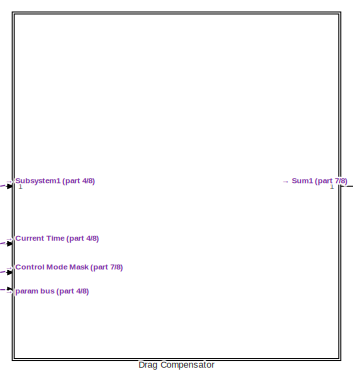
[diagram: root canvas - part 1/8, top center region]
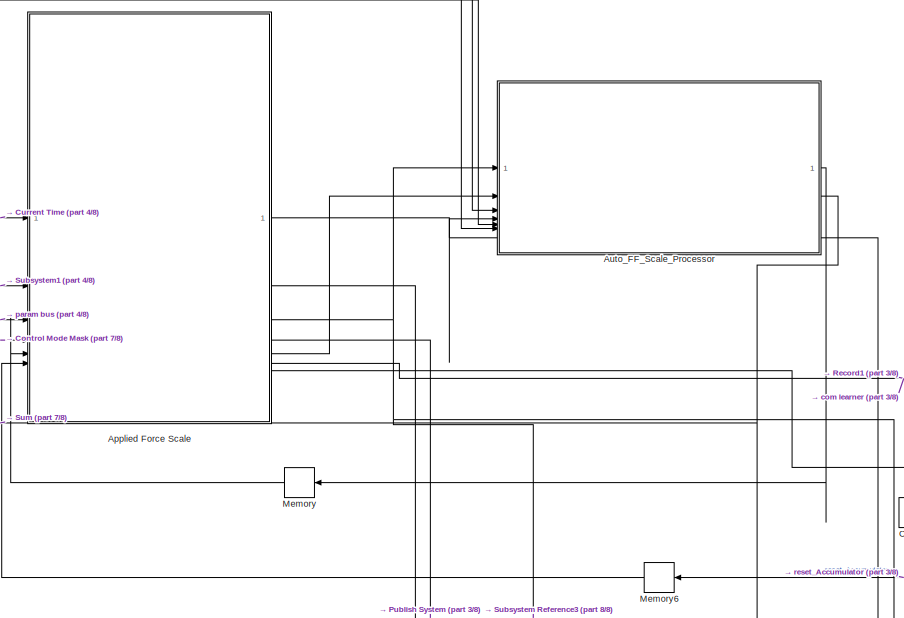
[diagram: root canvas - part 2/8, top right region]
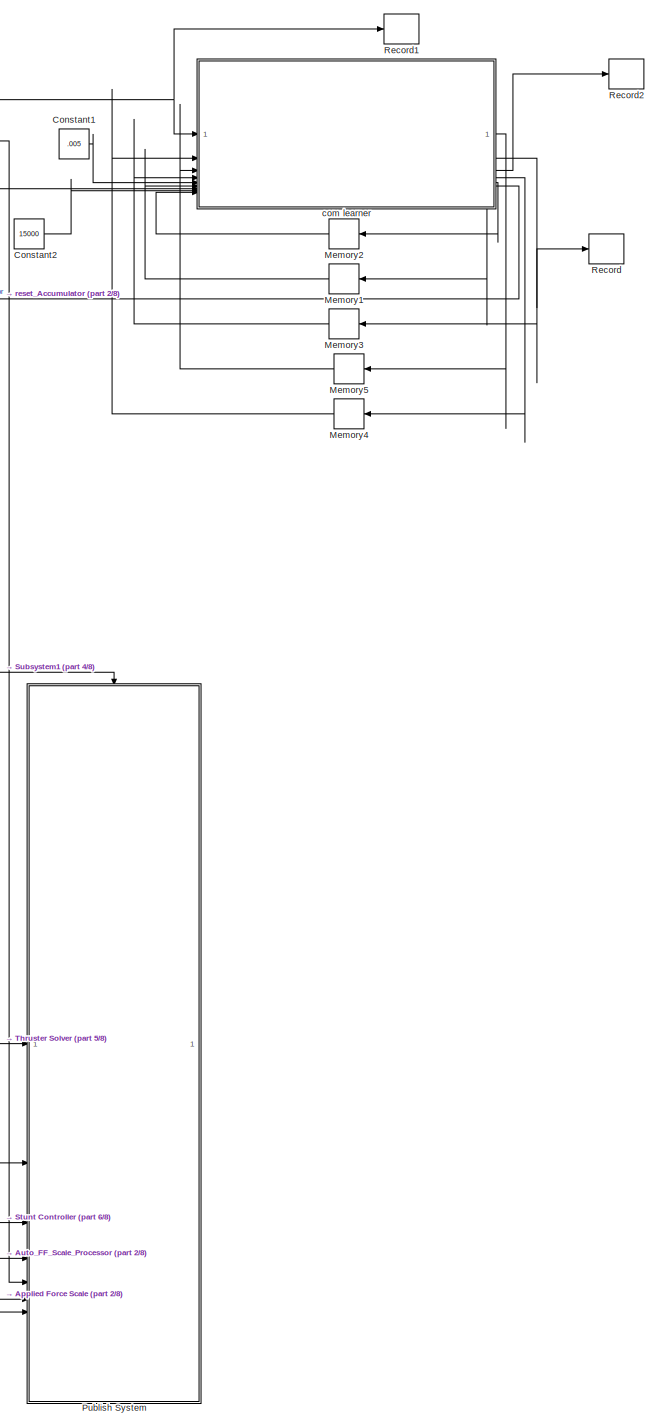
[diagram: root canvas - part 3/8, middle right region]
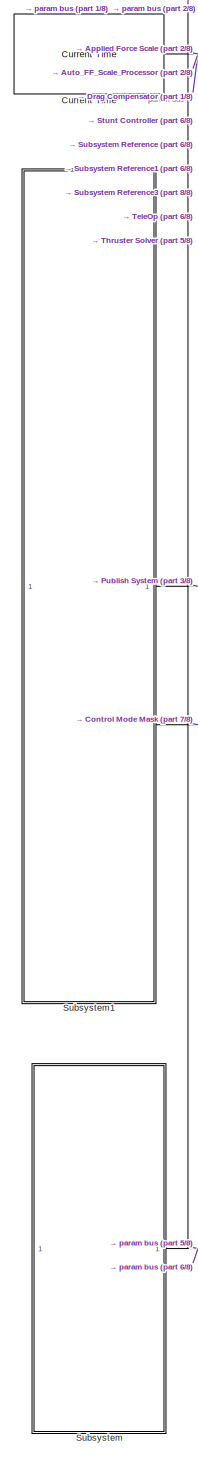
[diagram: root canvas - part 4/8, bottom left region]
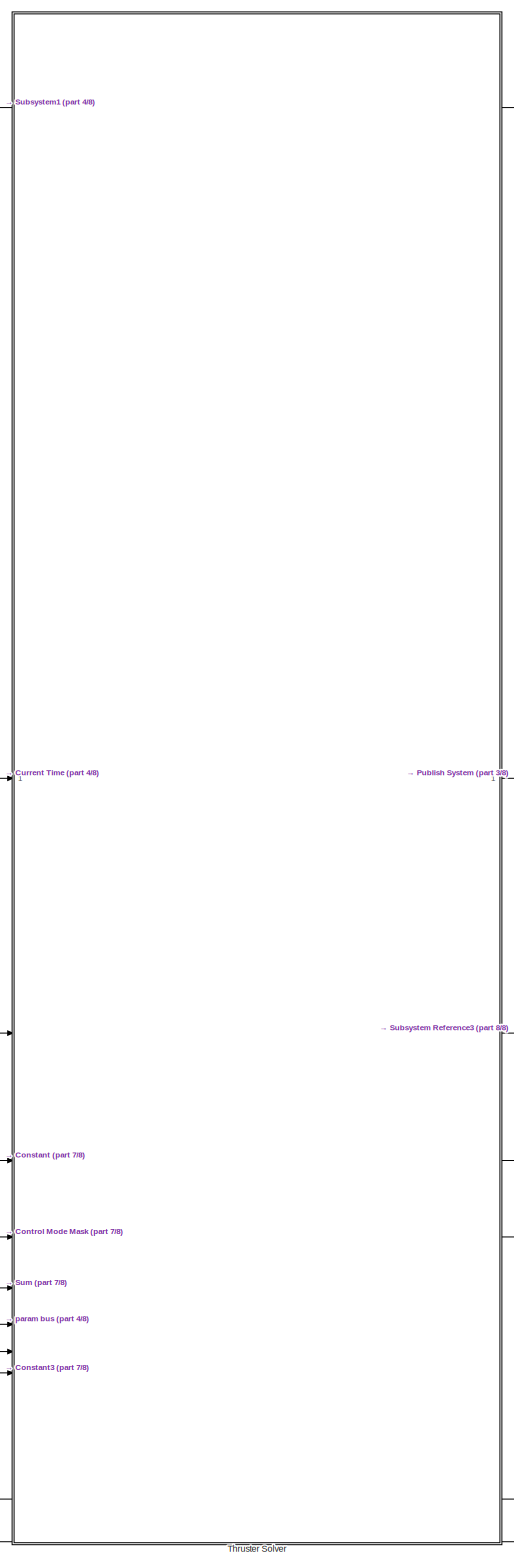
[diagram: root canvas - part 5/8, bottom right region]
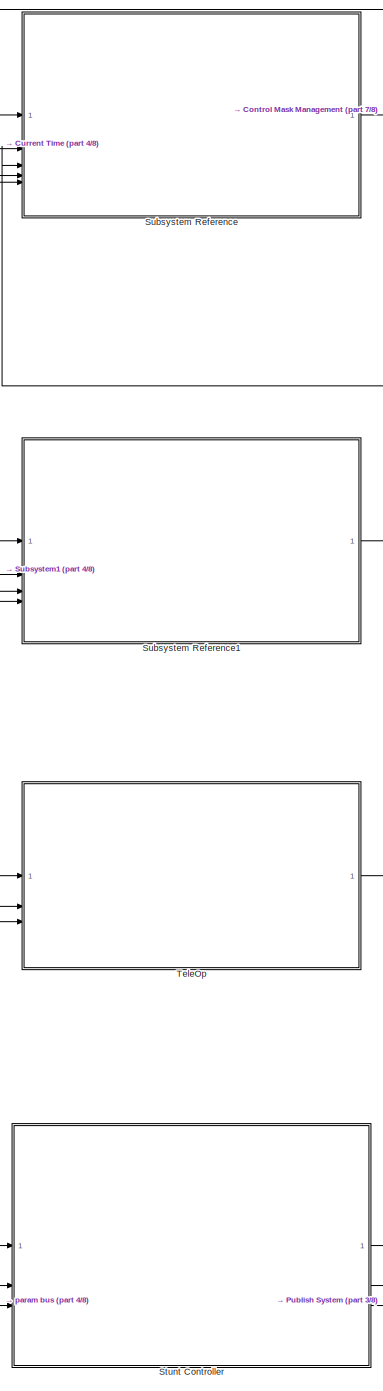
[diagram: root canvas - part 6/8, bottom left region]
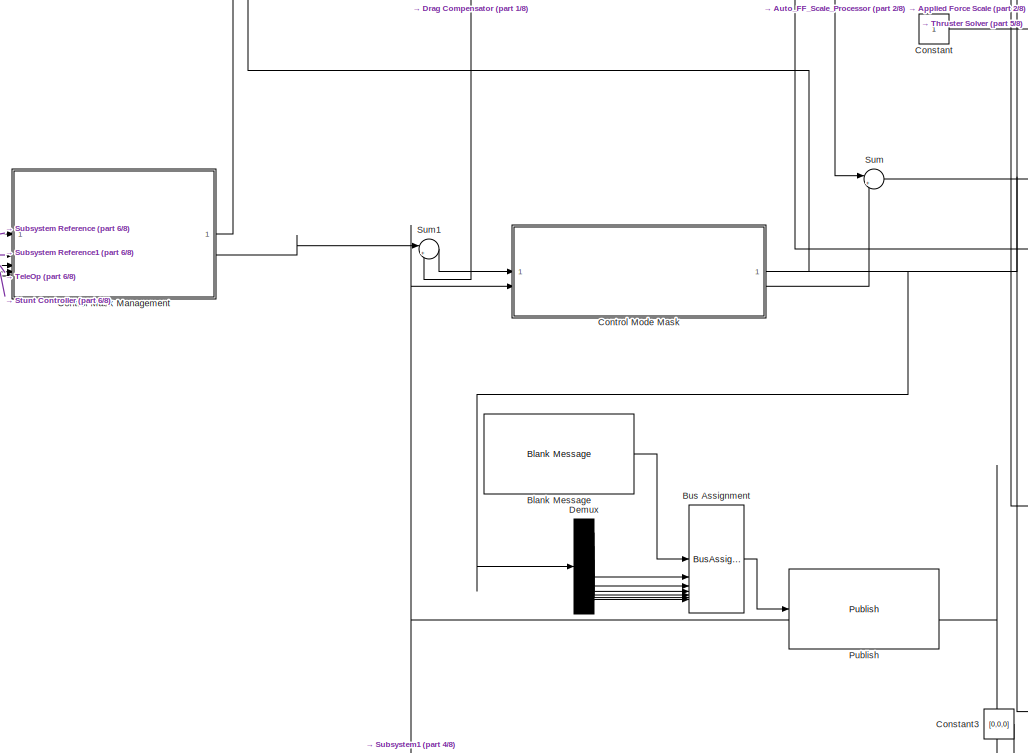
[diagram: root canvas - part 7/8, bottom center region]
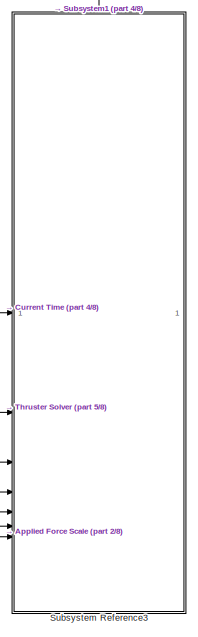
[diagram: root canvas - part 8/8, bottom right region]
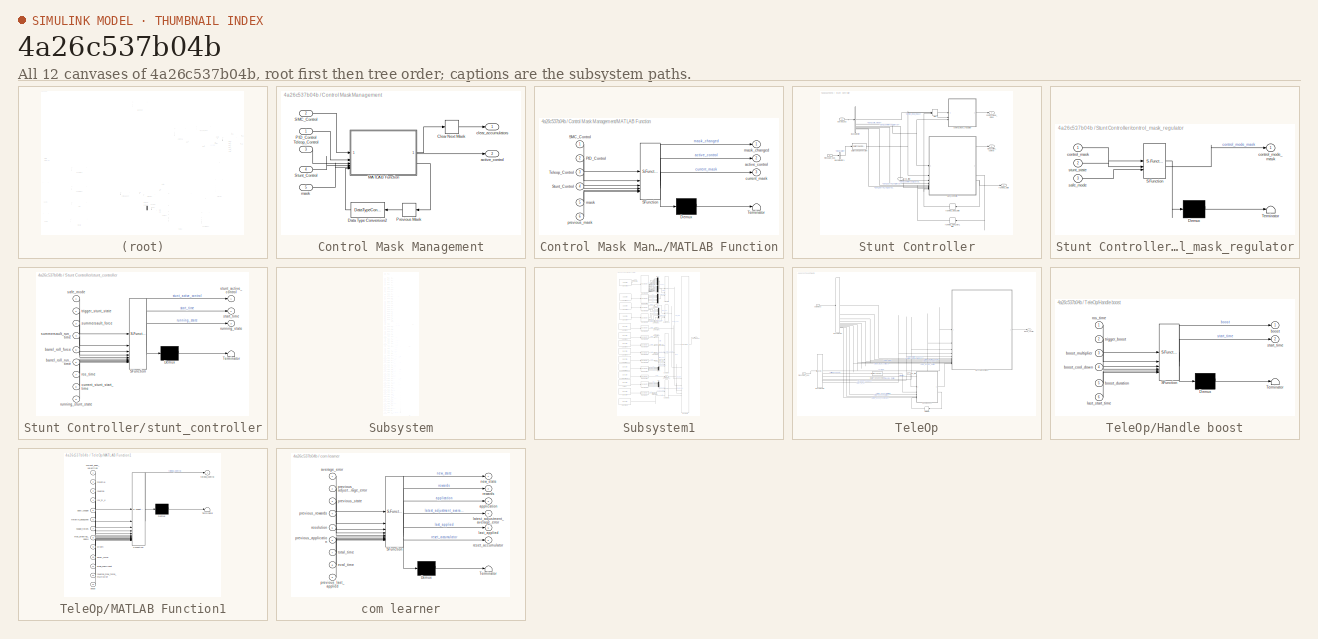
[diagram: thumbnail index - all 12 canvases of the model, root first then tree order]
MODEL slx_4a26c537b04b
KIND model
CONFIG AbsTol = auto
CONFIG EnableMultiTasking = off
CONFIG FixedStep = auto
CONFIG MaxStep = auto
CONFIG MinStep = auto
CONFIG RelTol = 1e-3
CONFIG SampleTimeConstraint = Unconstrained
CONFIG SolverName = FixedStepAuto
CONFIG StartTime = 0.0
CONFIG StopTime = inf
WORKSPACE source: mxarray member
WORKSPACE SL_ROS_VariableLengthArrays_MaxSizes: object (value not decoded)
BLOCK [SubSystem] Applied Force Scale
  ReferencedSubsystem = AppliedForceScale
BLOCK [SubSystem] Auto_FF_Scale_Processor
  ReferencedSubsystem = Auto_FF_Scale_Processor
BLOCK [Reference] Blank Message  REF=ros2lib/Blank Message  (lib defined in slx_3c1549211f48)
  SourceBlock = ros2lib/Blank Message
  SourceType = ROS2 Blank Message
BLOCK [BusAssignment] Bus Assignment
  AssignedSignals = linear.x,linear.y,linear.z,angular.x,angular.y,angular.z
BLOCK [Constant] Constant
BLOCK [Constant] Constant1
  Value = .005
BLOCK [Constant] Constant2
  Value = 15000
BLOCK [Constant] Constant3
  Value = [0,0,0]
BLOCK [SubSystem] Control Mask Management
BLOCK [Memory] Control Mask Management/Clear Next Mask
BLOCK [DataTypeConversion] Control Mask Management/Data Type Conversion2
  RndMeth = Floor
  SaturateOnIntegerOverflow = off
BLOCK [SubSystem] Control Mask Management/MATLAB Function
  ErrorFcn = Stateflow.Translate.translate
  LibrarySourceBlock = simulink/User-Defined\nFunctions/MATLAB Function
  PermitHierarchicalResolution = ExplicitOnly
  SFBlockType = MATLAB Function
  TreatAsAtomicUnit = on
BLOCK [Demux] Control Mask Management/MATLAB Function/ Demux 
  Outputs = 1
BLOCK [S-Function] Control Mask Management/MATLAB Function/ SFunction 
  EnableBusSupport = on
  FunctionName = sf_sfun
  PortCounts = [6 4]
  SFcnIsStateOwnerBlock = off
  SFunctionDeploymentMode = off
  Tag = Stateflow S-Function 15
BLOCK [Terminator] Control Mask Management/MATLAB Function/ Terminator 
BLOCK [Inport] Control Mask Management/MATLAB Function/PID_Control
  Port = 2
BLOCK [Inport] Control Mask Management/MATLAB Function/SMC_Control
BLOCK [Inport] Control Mask Management/MATLAB Function/Stunt_Control
  Port = 4
BLOCK [Inport] Control Mask Management/MATLAB Function/Teleop_Control
  Port = 3
BLOCK [Outport] Control Mask Management/MATLAB Function/active_control
  Port = 2
BLOCK [Outport] Control Mask Management/MATLAB Function/current_mask
  Port = 3
BLOCK [Inport] Control Mask Management/MATLAB Function/mask
  Port = 5
BLOCK [Outport] Control Mask Management/MATLAB Function/mask_changed
BLOCK [Inport] Control Mask Management/MATLAB Function/previous_mask
  Port = 6
BLOCK [Inport] Control Mask Management/PID_Control
BLOCK [Memory] Control Mask Management/Previous Mask
  InitialCondition = [0,0,0,0,0,0]
BLOCK [Inport] Control Mask Management/SMC_Control
  Port = 2
BLOCK [Inport] Control Mask Management/Stunt_Control
  Port = 4
BLOCK [Inport] Control Mask Management/Teleop_Control
  Port = 3
BLOCK [Outport] Control Mask Management/active_control
  Port = 2
BLOCK [Outport] Control Mask Management/clear_accumulators
BLOCK [Inport] Control Mask Management/mask
  Port = 5
BLOCK [SubSystem] Control Mode Mask
  ReferencedSubsystem = Disable_Gains
BLOCK [Reference] Current Time  REF=ros2lib/Current Time  (lib defined in slx_3c1549211f48)
  SourceBlock = ros2lib/Current Time
  SourceType = ros.slros2.internal.block.CurrentTime
BLOCK [Demux] Demux
  Outputs = 6
BLOCK [SubSystem] Drag Compensator
  ReferencedSubsystem = Drag_Compensator_mk1
BLOCK [Memory] Memory
  InitialCondition = false
BLOCK [Memory] Memory1
  InitialCondition = [0;0;0]
BLOCK [Memory] Memory2
BLOCK [Memory] Memory3
  InitialCondition = [0;0;0;0;0;0]
BLOCK [Memory] Memory4
BLOCK [Memory] Memory5
BLOCK [Memory] Memory6
  InitialCondition = false
BLOCK [Reference] Publish  REF=ros2lib/Publish  (lib defined in slx_3c1549211f48)
  SourceBlock = ros2lib/Publish
  SourceType = ROS2 Publish
BLOCK [SubSystem] Publish System
  ReferencedSubsystem = Publish_Control_System_Out
BLOCK [Record] Record
  FileSettingsInternal = {"entries":[{"content":{"excelSettings":{"content":{},"type":"Streamout.ExcelSettings"}},"type":"Streamout.FileSettingStorage","uuid":""}],"packageUris":["http:\/\/schema.mathworks.com\/mf0\/streamout_blocks\/R2020a"],"version":"1.0"}  <repeated x3 — deduplicated; at blocks: Record, Record1, Record2>
  Layout = [1 1]
  SignalsInternal = {"entries":[{"content":{"signals":[{"content":{"blockPath":[],"dimensions":[6,1],"domain":"","hasChildren":true,"lineColor":"#64d413","port":1,"sid":[""],"signalID":7429,"signalName":"com learner:2"},"type":"RecordBlkView.Signal","uuid":""},{"content":{"blockPath":[],"channel":[1,1],"dimensions":[6,1],"domain":"","lineColor":"#ff6929","parentID":7429,"plots":[1],"port":1,"sid":[""],"signalID":7430...<+1372ch>
  VisualizationBindings = {"sparklinesplugin":{"info":[{"bindingParametersList":[],"subplotID":1}]}}
BLOCK [Record] Record1
  Layout = [1 1]
  SignalsInternal = {"entries":[{"content":{"signals":[{"content":{"blockPath":[],"dimensions":[6,1],"domain":"","hasChildren":true,"lineColor":"#fe330a","port":1,"sid":[""],"signalID":7434,"signalName":"Applied Force Scale:6"},"type":"RecordBlkView.Signal","uuid":""},{"content":{"blockPath":[],"channel":[1,1],"dimensions":[6,1],"domain":"","lineColor":"#64d413","parentID":7434,"plots":[1],"port":1,"sid":[""],"signal...<+1428ch>
  VisualizationBindings = {"sparklinesplugin":{"info":[{"bindingParametersList":[],"subplotID":1}]}}
BLOCK [Record] Record2
  SignalsInternal = {"entries":[{"content":{"signals":[{"content":{"blockPath":[],"dimensions":[3,1],"domain":"","hasChildren":true,"lineColor":"#0072bd","port":1,"sid":[""],"signalID":7439,"signalName":"com learner:3"},"type":"RecordBlkView.Signal","uuid":""},{"content":{"blockPath":[],"channel":[1,1],"dimensions":[3,1],"domain":"","lineColor":"#fe330a","parentID":7439,"plots":[1],"port":1,"sid":[""],"signalID":7440...<+679ch>
  VisualizationBindings = {"sparklinesplugin":{"info":[{"bindingParametersList":[],"subplotID":1}]}}
BLOCK [SubSystem] Stunt Controller
BLOCK [BusSelector] Stunt Controller/Bus Selector
  OutputSignals = Iactive_input_mask,Bsnt_safe_mode,Dsnt_summersault_force,Dsnt_summersault_duration,Dsnt_barrel_roll_force,Dsnt_barrel_roll_duration
BLOCK [BusSelector] Stunt Controller/Bus Selector1
  OutputSignals = Istunt_state
BLOCK [DataTypeConversion] Stunt Controller/Data Type Conversion
  RndMeth = Floor
  SaturateOnIntegerOverflow = off
BLOCK [MinMax] Stunt Controller/Max
  Function = max
  Inputs = 2
BLOCK [SubSystem] Stunt Controller/control_mask_regulator
  ErrorFcn = Stateflow.Translate.translate
  LibrarySourceBlock = simulink/User-Defined\nFunctions/MATLAB Function
  PermitHierarchicalResolution = ExplicitOnly
  SFBlockType = MATLAB Function
  TreatAsAtomicUnit = on
BLOCK [Demux] Stunt Controller/control_mask_regulator/ Demux 
  Outputs = 1
BLOCK [S-Function] Stunt Controller/control_mask_regulator/ SFunction 
  EnableBusSupport = on
  FunctionName = sf_sfun
  PortCounts = [3 2]
  SFcnIsStateOwnerBlock = off
  SFunctionDeploymentMode = off
  Tag = Stateflow S-Function 19
BLOCK [Terminator] Stunt Controller/control_mask_regulator/ Terminator 
BLOCK [Inport] Stunt Controller/control_mask_regulator/control_mask
BLOCK [Outport] Stunt Controller/control_mask_regulator/control_mode_mask
BLOCK [Inport] Stunt Controller/control_mask_regulator/safe_mode
  Port = 3
BLOCK [Inport] Stunt Controller/control_mask_regulator/stunt_state
  Port = 2
BLOCK [Outport] Stunt Controller/control_mode_mask
  Port = 2
BLOCK [Inport] Stunt Controller/message_bus
  Port = 2
BLOCK [Inport] Stunt Controller/param_bus
  Port = 3
BLOCK [Inport] Stunt Controller/ros_time
BLOCK [Outport] Stunt Controller/running_state
  Port = 3
BLOCK [Memory] Stunt Controller/running_stunt_start_time
BLOCK [Memory] Stunt Controller/running_stunt_state
BLOCK [Outport] Stunt Controller/stunt_active_control
BLOCK [SubSystem] Stunt Controller/stunt_controller
  ErrorFcn = Stateflow.Translate.translate
  LibrarySourceBlock = simulink/User-Defined\nFunctions/MATLAB Function
  PermitHierarchicalResolution = ExplicitOnly
  SFBlockType = MATLAB Function
  TreatAsAtomicUnit = on
BLOCK [Demux] Stunt Controller/stunt_controller/ Demux 
  Outputs = 1
BLOCK [S-Function] Stunt Controller/stunt_controller/ SFunction 
  EnableBusSupport = on
  FunctionName = sf_sfun
  PortCounts = [9 4]
  SFcnIsStateOwnerBlock = off
  SFunctionDeploymentMode = off
  Tag = Stateflow S-Function 20
BLOCK [Terminator] Stunt Controller/stunt_controller/ Terminator 
BLOCK [Inport] Stunt Controller/stunt_controller/barrel_roll_force
  Port = 5
BLOCK [Inport] Stunt Controller/stunt_controller/barrel_roll_run_time
  Port = 6
BLOCK [Inport] Stunt Controller/stunt_controller/current_stunt_start_time
  Port = 8
BLOCK [Inport] Stunt Controller/stunt_controller/ros_time
  Port = 7
BLOCK [Outport] Stunt Controller/stunt_controller/running_state
  Port = 3
BLOCK [Inport] Stunt Controller/stunt_controller/running_stunt_state
  Port = 9
BLOCK [Inport] Stunt Controller/stunt_controller/safe_mode
BLOCK [Outport] Stunt Controller/stunt_controller/start_time
  Port = 2
BLOCK [Outport] Stunt Controller/stunt_controller/stunt_active_control
BLOCK [Inport] Stunt Controller/stunt_controller/summersault_force
  Port = 3
BLOCK [Inport] Stunt Controller/stunt_controller/summersault_run_time
  Port = 4
BLOCK [Inport] Stunt Controller/stunt_controller/trigger_stunt_state
  Port = 2
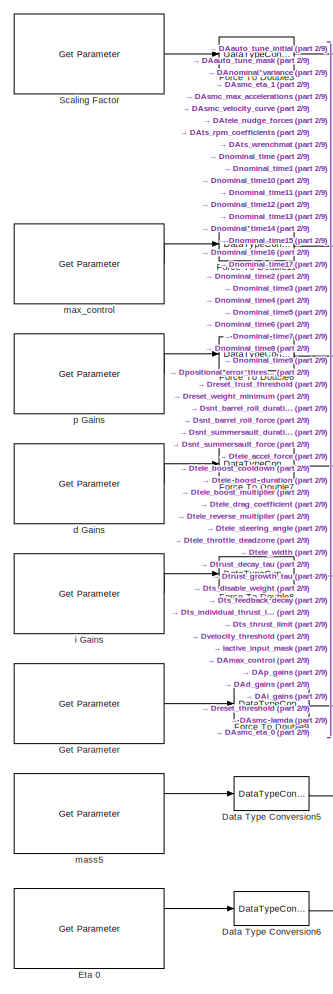
[diagram: Subsystem - part 1/9, top left region]
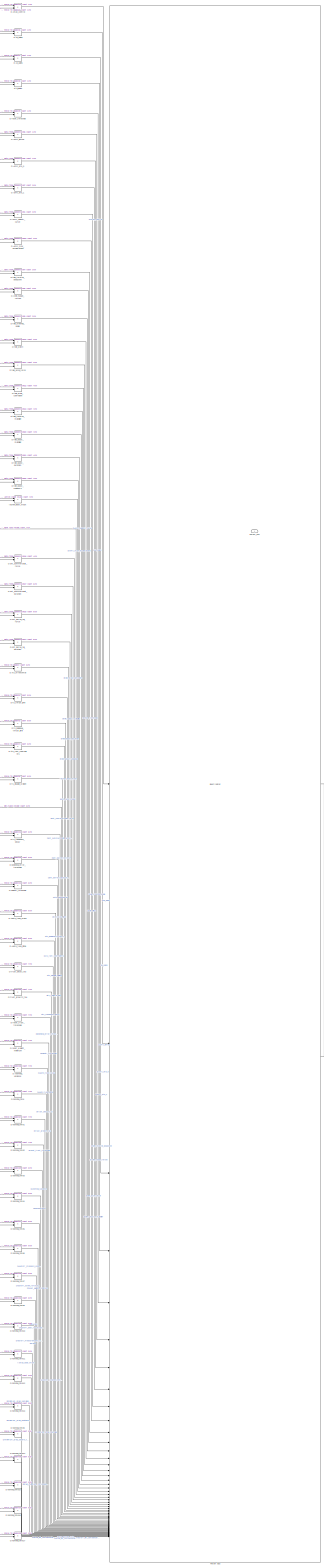
[diagram: Subsystem - part 2/9, most of the canvas]
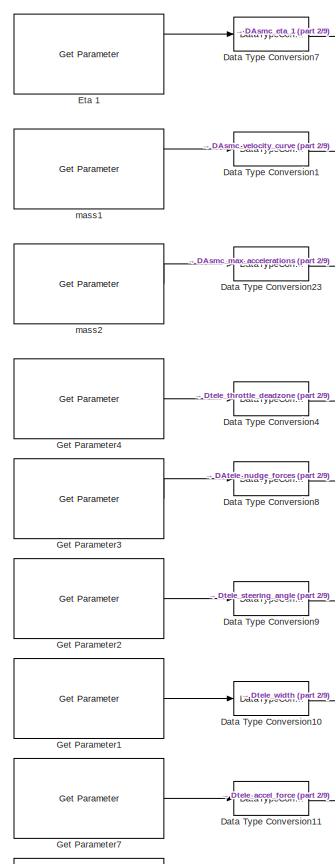
[diagram: Subsystem - part 3/9, top left region]
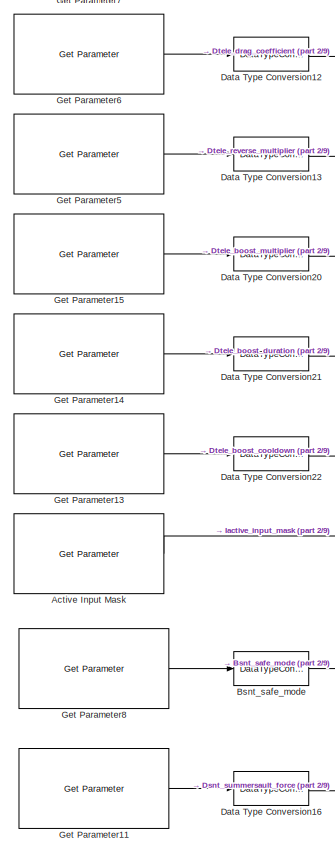
[diagram: Subsystem - part 4/9, top left region]
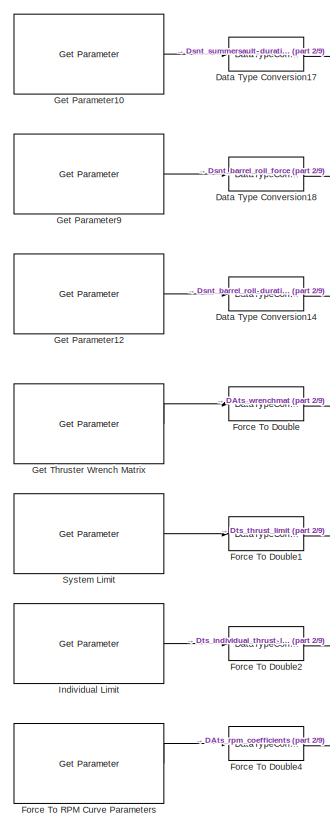
[diagram: Subsystem - part 5/9, middle left region]
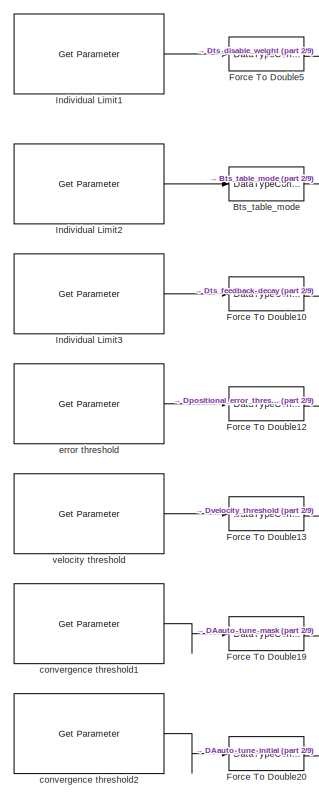
[diagram: Subsystem - part 6/9, middle left region]
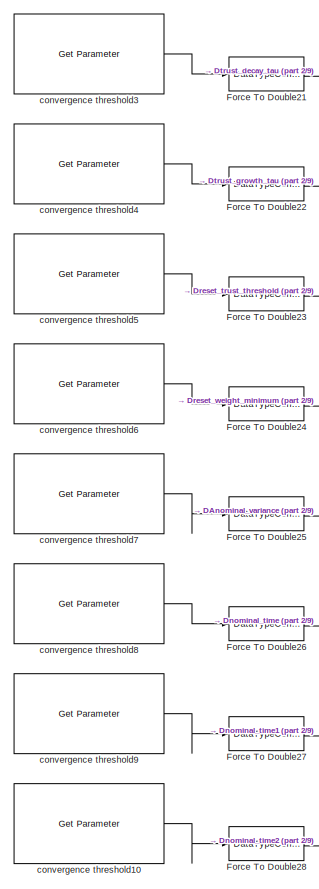
[diagram: Subsystem - part 7/9, bottom left region]
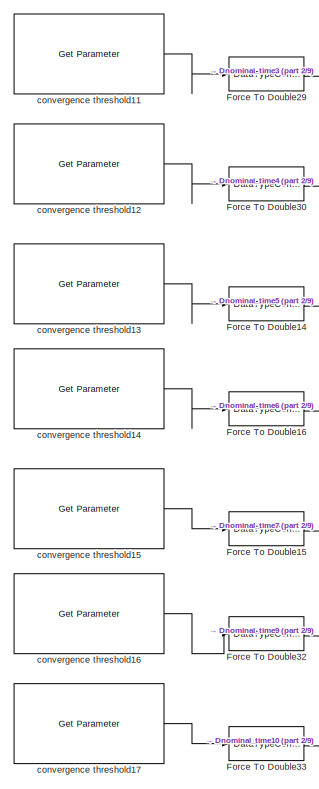
[diagram: Subsystem - part 8/9, bottom left region]
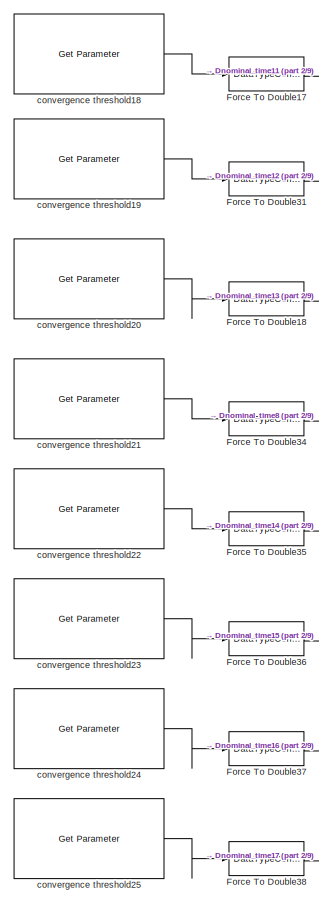
[diagram: Subsystem - part 9/9, bottom left region]
BLOCK [SubSystem] Subsystem
BLOCK [SubSystem] Subsystem Reference
  PortSchema = {"entries":[{"content":{"sides":[{"content":{"connectorIds":["In2","In1","In3","In5","In4"]},"type":"ConnectorPlacement.EquallySpacedRectSide","uuid":"8e3db528-7e61-4c43-b00e-51bc92e38ec5"},{"content":{"connectorIds":["Out1"],"side":"RIGHT"},"type":"ConnectorPlacement.EquallySpacedRectSide","uuid":"f86917d4-f680-48e1-82f7-3e38b9d3dfda"},{"content":{"side":"TOP"},"type":"ConnectorPlacement.EquallyS...<+246ch>
  ReferencedSubsystem = PID_Mathmatical
BLOCK [SubSystem] Subsystem Reference1
  PortSchema = {"entries":[{"content":{"sides":[{"content":{"connectorIds":["In1","In2","In4","In3"]},"type":"ConnectorPlacement.EquallySpacedRectSide","uuid":"d99f1ec8-d0dd-4591-8b28-a91bcf98a65e"},{"content":{"connectorIds":["Out1"],"side":"RIGHT"},"type":"ConnectorPlacement.EquallySpacedRectSide","uuid":"f211976d-83c1-4660-96a4-4139d6a3eac5"},{"content":{"side":"TOP"},"type":"ConnectorPlacement.EquallySpacedR...<+240ch>
  ReferencedSubsystem = SMC_mathmatical
BLOCK [SubSystem] Subsystem Reference3
  ReferencedSubsystem = Diagnostic_Reporter
BLOCK [Reference] Subsystem/Active Input Mask  REF=ros2lib/Get Parameter  (lib defined in slx_3c1549211f48)
  SourceBlock = ros2lib/Get Parameter
  SourceType = ros.slros2.internal.block.GetParameter
BLOCK [DataTypeConversion] Subsystem/Bsnt_safe_mode
  OutDataTypeStr = boolean
  RndMeth = Floor
  SaturateOnIntegerOverflow = off
BLOCK [DataTypeConversion] Subsystem/Bts_table_mode
  OutDataTypeStr = boolean
  RndMeth = Floor
  SaturateOnIntegerOverflow = off
BLOCK [Product] Subsystem/DAauto_tune_initial
  Inputs = */
BLOCK [Product] Subsystem/DAauto_tune_mask
  Inputs = */
BLOCK [Product] Subsystem/DAd_gains
  Inputs = */
BLOCK [Product] Subsystem/DAi_gains
  Inputs = */
BLOCK [Product] Subsystem/DAmax_control
  Inputs = */
BLOCK [Product] Subsystem/DAnominal_variance
  Inputs = */
BLOCK [Product] Subsystem/DAp_gains
  Inputs = */
BLOCK [Product] Subsystem/DAsmc_eta_0
  Inputs = */
BLOCK [Product] Subsystem/DAsmc_eta_1
  Inputs = */
BLOCK [Product] Subsystem/DAsmc_lamda
  Inputs = */
BLOCK [Product] Subsystem/DAsmc_max_accelerations
  Inputs = */
BLOCK [Product] Subsystem/DAsmc_velocity_curve
  Inputs = */
BLOCK [Product] Subsystem/DAtele_nudge_forces
  Inputs = */
BLOCK [Product] Subsystem/DAts_rpm_coefficients
  Inputs = */
BLOCK [Product] Subsystem/DAts_wrenchmat
  Inputs = */
BLOCK [DataTypeConversion] Subsystem/Data Type Conversion1
  OutDataTypeStr = double
  RndMeth = Floor
  SaturateOnIntegerOverflow = off
BLOCK [DataTypeConversion] Subsystem/Data Type Conversion10
  OutDataTypeStr = double
  RndMeth = Floor
  SaturateOnIntegerOverflow = off
BLOCK [DataTypeConversion] Subsystem/Data Type Conversion11
  OutDataTypeStr = double
  RndMeth = Floor
  SaturateOnIntegerOverflow = off
BLOCK [DataTypeConversion] Subsystem/Data Type Conversion12
  OutDataTypeStr = double
  RndMeth = Floor
  SaturateOnIntegerOverflow = off
BLOCK [DataTypeConversion] Subsystem/Data Type Conversion13
  OutDataTypeStr = double
  RndMeth = Floor
  SaturateOnIntegerOverflow = off
BLOCK [DataTypeConversion] Subsystem/Data Type Conversion14
  OutDataTypeStr = double
  RndMeth = Floor
  SaturateOnIntegerOverflow = off
BLOCK [DataTypeConversion] Subsystem/Data Type Conversion16
  OutDataTypeStr = double
  RndMeth = Floor
  SaturateOnIntegerOverflow = off
BLOCK [DataTypeConversion] Subsystem/Data Type Conversion17
  OutDataTypeStr = double
  RndMeth = Floor
  SaturateOnIntegerOverflow = off
BLOCK [DataTypeConversion] Subsystem/Data Type Conversion18
  OutDataTypeStr = double
  RndMeth = Floor
  SaturateOnIntegerOverflow = off
BLOCK [DataTypeConversion] Subsystem/Data Type Conversion20
  OutDataTypeStr = double
  RndMeth = Floor
  SaturateOnIntegerOverflow = off
BLOCK [DataTypeConversion] Subsystem/Data Type Conversion21
  OutDataTypeStr = double
  RndMeth = Floor
  SaturateOnIntegerOverflow = off
BLOCK [DataTypeConversion] Subsystem/Data Type Conversion22
  OutDataTypeStr = double
  RndMeth = Floor
  SaturateOnIntegerOverflow = off
BLOCK [DataTypeConversion] Subsystem/Data Type Conversion23
  OutDataTypeStr = double
  RndMeth = Floor
  SaturateOnIntegerOverflow = off
BLOCK [DataTypeConversion] Subsystem/Data Type Conversion4
  OutDataTypeStr = double
  RndMeth = Floor
  SaturateOnIntegerOverflow = off
BLOCK [DataTypeConversion] Subsystem/Data Type Conversion5
  OutDataTypeStr = double
  RndMeth = Floor
  SaturateOnIntegerOverflow = off
BLOCK [DataTypeConversion] Subsystem/Data Type Conversion6
  OutDataTypeStr = double
  RndMeth = Floor
  SaturateOnIntegerOverflow = off
BLOCK [DataTypeConversion] Subsystem/Data Type Conversion7
  OutDataTypeStr = double
  RndMeth = Floor
  SaturateOnIntegerOverflow = off
BLOCK [DataTypeConversion] Subsystem/Data Type Conversion8
  OutDataTypeStr = double
  RndMeth = Floor
  SaturateOnIntegerOverflow = off
BLOCK [DataTypeConversion] Subsystem/Data Type Conversion9
  OutDataTypeStr = double
  RndMeth = Floor
  SaturateOnIntegerOverflow = off
BLOCK [Product] Subsystem/Dnominal_time
  Inputs = */
BLOCK [Product] Subsystem/Dnominal_time1
  Inputs = */
BLOCK [Product] Subsystem/Dnominal_time10
  Inputs = */
BLOCK [Product] Subsystem/Dnominal_time11
  Inputs = */
BLOCK [Product] Subsystem/Dnominal_time12
  Inputs = */
BLOCK [Product] Subsystem/Dnominal_time13
  Inputs = */
BLOCK [Product] Subsystem/Dnominal_time14
  Inputs = */
BLOCK [Product] Subsystem/Dnominal_time15
  Inputs = */
BLOCK [Product] Subsystem/Dnominal_time16
  Inputs = */
BLOCK [Product] Subsystem/Dnominal_time17
  Inputs = */
BLOCK [Product] Subsystem/Dnominal_time2
  Inputs = */
BLOCK [Product] Subsystem/Dnominal_time3
  Inputs = */
BLOCK [Product] Subsystem/Dnominal_time4
  Inputs = */
BLOCK [Product] Subsystem/Dnominal_time5
  Inputs = */
BLOCK [Product] Subsystem/Dnominal_time6
  Inputs = */
BLOCK [Product] Subsystem/Dnominal_time7
  Inputs = */
BLOCK [Product] Subsystem/Dnominal_time8
  Inputs = */
BLOCK [Product] Subsystem/Dnominal_time9
  Inputs = */
BLOCK [Product] Subsystem/Dpositional_error_threshold
  Inputs = */
BLOCK [Product] Subsystem/Dreset_threshold
  Inputs = */
BLOCK [Product] Subsystem/Dreset_trust_threshold
  Inputs = */
BLOCK [Product] Subsystem/Dreset_weight_minimum
  Inputs = */
BLOCK [Product] Subsystem/Dsnt_barrel_roll_duration
  Inputs = */
BLOCK [Product] Subsystem/Dsnt_barrel_roll_force
  Inputs = */
BLOCK [Product] Subsystem/Dsnt_summersault_duration
  Inputs = */
BLOCK [Product] Subsystem/Dsnt_summersault_force
  Inputs = */
BLOCK [Product] Subsystem/Dtele_accel_force
  Inputs = */
BLOCK [Product] Subsystem/Dtele_boost_cooldown
  Inputs = */
BLOCK [Product] Subsystem/Dtele_boost_duration
  Inputs = */
BLOCK [Product] Subsystem/Dtele_boost_multiplier
  Inputs = */
BLOCK [Product] Subsystem/Dtele_drag_coefficient
  Inputs = */
BLOCK [Product] Subsystem/Dtele_reverse_multiplier
  Inputs = */
BLOCK [Product] Subsystem/Dtele_steering_angle
  Inputs = */
BLOCK [Product] Subsystem/Dtele_throttle_deadzone
  Inputs = */
BLOCK [Product] Subsystem/Dtele_width
  Inputs = */
BLOCK [Product] Subsystem/Dtrust_decay_tau
  Inputs = */
BLOCK [Product] Subsystem/Dtrust_growth_tau
  Inputs = */
BLOCK [Product] Subsystem/Dts_disable_weight
  Inputs = */
BLOCK [Product] Subsystem/Dts_feedback_decay
  Inputs = */
BLOCK [Product] Subsystem/Dts_individual_thrust_limit
  Inputs = */
BLOCK [Product] Subsystem/Dts_thrust_limit
  Inputs = */
BLOCK [Product] Subsystem/Dvelocity_threshold
  Inputs = */
BLOCK [Reference] Subsystem/Eta 0  REF=ros2lib/Get Parameter  (lib defined in slx_3c1549211f48)
  LibrarySourceBlock = roslib/ROS 2/Get Parameter
  SourceBlock = ros2lib/Get Parameter
  SourceType = ros.slros2.internal.block.GetParameter
BLOCK [Reference] Subsystem/Eta 1  REF=ros2lib/Get Parameter  (lib defined in slx_3c1549211f48)
  LibrarySourceBlock = roslib/ROS 2/Get Parameter
  SourceBlock = ros2lib/Get Parameter
  SourceType = ros.slros2.internal.block.GetParameter
BLOCK [DataTypeConversion] Subsystem/Force To Double
  OutDataTypeStr = double
  RndMeth = Floor
  SaturateOnIntegerOverflow = off
BLOCK [DataTypeConversion] Subsystem/Force To Double1
  OutDataTypeStr = double
  RndMeth = Floor
  SaturateOnIntegerOverflow = off
BLOCK [DataTypeConversion] Subsystem/Force To Double10
  OutDataTypeStr = double
  RndMeth = Floor
  SaturateOnIntegerOverflow = off
BLOCK [DataTypeConversion] Subsystem/Force To Double11
  OutDataTypeStr = double
  RndMeth = Floor
  SaturateOnIntegerOverflow = off
BLOCK [DataTypeConversion] Subsystem/Force To Double12
  OutDataTypeStr = double
  RndMeth = Floor
  SaturateOnIntegerOverflow = off
BLOCK [DataTypeConversion] Subsystem/Force To Double13
  OutDataTypeStr = double
  RndMeth = Floor
  SaturateOnIntegerOverflow = off
BLOCK [DataTypeConversion] Subsystem/Force To Double14
  OutDataTypeStr = double
  RndMeth = Floor
  SaturateOnIntegerOverflow = off
BLOCK [DataTypeConversion] Subsystem/Force To Double15
  OutDataTypeStr = double
  RndMeth = Floor
  SaturateOnIntegerOverflow = off
BLOCK [DataTypeConversion] Subsystem/Force To Double16
  OutDataTypeStr = double
  RndMeth = Floor
  SaturateOnIntegerOverflow = off
BLOCK [DataTypeConversion] Subsystem/Force To Double17
  OutDataTypeStr = double
  RndMeth = Floor
  SaturateOnIntegerOverflow = off
BLOCK [DataTypeConversion] Subsystem/Force To Double18
  OutDataTypeStr = double
  RndMeth = Floor
  SaturateOnIntegerOverflow = off
BLOCK [DataTypeConversion] Subsystem/Force To Double19
  OutDataTypeStr = double
  RndMeth = Floor
  SaturateOnIntegerOverflow = off
BLOCK [DataTypeConversion] Subsystem/Force To Double2
  OutDataTypeStr = double
  RndMeth = Floor
  SaturateOnIntegerOverflow = off
BLOCK [DataTypeConversion] Subsystem/Force To Double20
  OutDataTypeStr = double
  RndMeth = Floor
  SaturateOnIntegerOverflow = off
BLOCK [DataTypeConversion] Subsystem/Force To Double21
  OutDataTypeStr = double
  RndMeth = Floor
  SaturateOnIntegerOverflow = off
BLOCK [DataTypeConversion] Subsystem/Force To Double22
  OutDataTypeStr = double
  RndMeth = Floor
  SaturateOnIntegerOverflow = off
BLOCK [DataTypeConversion] Subsystem/Force To Double23
  OutDataTypeStr = double
  RndMeth = Floor
  SaturateOnIntegerOverflow = off
BLOCK [DataTypeConversion] Subsystem/Force To Double24
  OutDataTypeStr = double
  RndMeth = Floor
  SaturateOnIntegerOverflow = off
BLOCK [DataTypeConversion] Subsystem/Force To Double25
  OutDataTypeStr = double
  RndMeth = Floor
  SaturateOnIntegerOverflow = off
BLOCK [DataTypeConversion] Subsystem/Force To Double26
  OutDataTypeStr = double
  RndMeth = Floor
  SaturateOnIntegerOverflow = off
BLOCK [DataTypeConversion] Subsystem/Force To Double27
  OutDataTypeStr = double
  RndMeth = Floor
  SaturateOnIntegerOverflow = off
BLOCK [DataTypeConversion] Subsystem/Force To Double28
  OutDataTypeStr = double
  RndMeth = Floor
  SaturateOnIntegerOverflow = off
BLOCK [DataTypeConversion] Subsystem/Force To Double29
  OutDataTypeStr = double
  RndMeth = Floor
  SaturateOnIntegerOverflow = off
BLOCK [DataTypeConversion] Subsystem/Force To Double3
  OutDataTypeStr = double
  RndMeth = Floor
  SaturateOnIntegerOverflow = off
BLOCK [DataTypeConversion] Subsystem/Force To Double30
  OutDataTypeStr = double
  RndMeth = Floor
  SaturateOnIntegerOverflow = off
BLOCK [DataTypeConversion] Subsystem/Force To Double31
  OutDataTypeStr = double
  RndMeth = Floor
  SaturateOnIntegerOverflow = off
BLOCK [DataTypeConversion] Subsystem/Force To Double32
  OutDataTypeStr = double
  RndMeth = Floor
  SaturateOnIntegerOverflow = off
BLOCK [DataTypeConversion] Subsystem/Force To Double33
  OutDataTypeStr = double
  RndMeth = Floor
  SaturateOnIntegerOverflow = off
BLOCK [DataTypeConversion] Subsystem/Force To Double34
  OutDataTypeStr = double
  RndMeth = Floor
  SaturateOnIntegerOverflow = off
BLOCK [DataTypeConversion] Subsystem/Force To Double35
  OutDataTypeStr = double
  RndMeth = Floor
  SaturateOnIntegerOverflow = off
BLOCK [DataTypeConversion] Subsystem/Force To Double36
  OutDataTypeStr = double
  RndMeth = Floor
  SaturateOnIntegerOverflow = off
BLOCK [DataTypeConversion] Subsystem/Force To Double37
  OutDataTypeStr = double
  RndMeth = Floor
  SaturateOnIntegerOverflow = off
BLOCK [DataTypeConversion] Subsystem/Force To Double38
  OutDataTypeStr = double
  RndMeth = Floor
  SaturateOnIntegerOverflow = off
BLOCK [DataTypeConversion] Subsystem/Force To Double4
  OutDataTypeStr = double
  RndMeth = Floor
  SaturateOnIntegerOverflow = off
BLOCK [DataTypeConversion] Subsystem/Force To Double5
  OutDataTypeStr = double
  RndMeth = Floor
  SaturateOnIntegerOverflow = off
BLOCK [DataTypeConversion] Subsystem/Force To Double6
  OutDataTypeStr = double
  RndMeth = Floor
  SaturateOnIntegerOverflow = off
BLOCK [DataTypeConversion] Subsystem/Force To Double7
  OutDataTypeStr = double
  RndMeth = Floor
  SaturateOnIntegerOverflow = off
BLOCK [DataTypeConversion] Subsystem/Force To Double8
  OutDataTypeStr = double
  RndMeth = Floor
  SaturateOnIntegerOverflow = off
BLOCK [DataTypeConversion] Subsystem/Force To Double9
  OutDataTypeStr = double
  RndMeth = Floor
  SaturateOnIntegerOverflow = off
BLOCK [Reference] Subsystem/Force To RPM Curve Parameters  REF=ros2lib/Get Parameter  (lib defined in slx_3c1549211f48)
  LibrarySourceBlock = roslib/ROS 2/Get Parameter
  SourceBlock = ros2lib/Get Parameter
  SourceType = ros.slros2.internal.block.GetParameter
BLOCK [Reference] Subsystem/Get Parameter  REF=ros2lib/Get Parameter  (lib defined in slx_3c1549211f48)
  LibrarySourceBlock = roslib/ROS 2/Get Parameter
  SourceBlock = ros2lib/Get Parameter
  SourceType = ros.slros2.internal.block.GetParameter
BLOCK [Reference] Subsystem/Get Parameter1  REF=ros2lib/Get Parameter  (lib defined in slx_3c1549211f48)
  SourceBlock = ros2lib/Get Parameter
  SourceType = ros.slros2.internal.block.GetParameter
BLOCK [Reference] Subsystem/Get Parameter10  REF=ros2lib/Get Parameter  (lib defined in slx_3c1549211f48)
  SourceBlock = ros2lib/Get Parameter
  SourceType = ros.slros2.internal.block.GetParameter
BLOCK [Reference] Subsystem/Get Parameter11  REF=ros2lib/Get Parameter  (lib defined in slx_3c1549211f48)
  SourceBlock = ros2lib/Get Parameter
  SourceType = ros.slros2.internal.block.GetParameter
BLOCK [Reference] Subsystem/Get Parameter12  REF=ros2lib/Get Parameter  (lib defined in slx_3c1549211f48)
  SourceBlock = ros2lib/Get Parameter
  SourceType = ros.slros2.internal.block.GetParameter
BLOCK [Reference] Subsystem/Get Parameter13  REF=ros2lib/Get Parameter  (lib defined in slx_3c1549211f48)
  SourceBlock = ros2lib/Get Parameter
  SourceType = ros.slros2.internal.block.GetParameter
BLOCK [Reference] Subsystem/Get Parameter14  REF=ros2lib/Get Parameter  (lib defined in slx_3c1549211f48)
  SourceBlock = ros2lib/Get Parameter
  SourceType = ros.slros2.internal.block.GetParameter
BLOCK [Reference] Subsystem/Get Parameter15  REF=ros2lib/Get Parameter  (lib defined in slx_3c1549211f48)
  SourceBlock = ros2lib/Get Parameter
  SourceType = ros.slros2.internal.block.GetParameter
BLOCK [Reference] Subsystem/Get Parameter2  REF=ros2lib/Get Parameter  (lib defined in slx_3c1549211f48)
  SourceBlock = ros2lib/Get Parameter
  SourceType = ros.slros2.internal.block.GetParameter
BLOCK [Reference] Subsystem/Get Parameter3  REF=ros2lib/Get Parameter  (lib defined in slx_3c1549211f48)
  SourceBlock = ros2lib/Get Parameter
  SourceType = ros.slros2.internal.block.GetParameter
BLOCK [Reference] Subsystem/Get Parameter4  REF=ros2lib/Get Parameter  (lib defined in slx_3c1549211f48)
  SourceBlock = ros2lib/Get Parameter
  SourceType = ros.slros2.internal.block.GetParameter
BLOCK [Reference] Subsystem/Get Parameter5  REF=ros2lib/Get Parameter  (lib defined in slx_3c1549211f48)
  SourceBlock = ros2lib/Get Parameter
  SourceType = ros.slros2.internal.block.GetParameter
BLOCK [Reference] Subsystem/Get Parameter6  REF=ros2lib/Get Parameter  (lib defined in slx_3c1549211f48)
  SourceBlock = ros2lib/Get Parameter
  SourceType = ros.slros2.internal.block.GetParameter
BLOCK [Reference] Subsystem/Get Parameter7  REF=ros2lib/Get Parameter  (lib defined in slx_3c1549211f48)
  SourceBlock = ros2lib/Get Parameter
  SourceType = ros.slros2.internal.block.GetParameter
BLOCK [Reference] Subsystem/Get Parameter8  REF=ros2lib/Get Parameter  (lib defined in slx_3c1549211f48)
  SourceBlock = ros2lib/Get Parameter
  SourceType = ros.slros2.internal.block.GetParameter
BLOCK [Reference] Subsystem/Get Parameter9  REF=ros2lib/Get Parameter  (lib defined in slx_3c1549211f48)
  SourceBlock = ros2lib/Get Parameter
  SourceType = ros.slros2.internal.block.GetParameter
BLOCK [Reference] Subsystem/Get Thruster Wrench Matrix  REF=ros2lib/Get Parameter  (lib defined in slx_3c1549211f48)
  LibrarySourceBlock = roslib/ROS 2/Get Parameter
  SourceBlock = ros2lib/Get Parameter
  SourceType = ros.slros2.internal.block.GetParameter
BLOCK [Product] Subsystem/Iactive_input_mask
  Inputs = */
BLOCK [Reference] Subsystem/Individual Limit  REF=ros2lib/Get Parameter  (lib defined in slx_3c1549211f48)
  LibrarySourceBlock = roslib/ROS 2/Get Parameter
  SourceBlock = ros2lib/Get Parameter
  SourceType = ros.slros2.internal.block.GetParameter
BLOCK [Reference] Subsystem/Individual Limit1  REF=ros2lib/Get Parameter  (lib defined in slx_3c1549211f48)
  LibrarySourceBlock = roslib/ROS 2/Get Parameter
  SourceBlock = ros2lib/Get Parameter
  SourceType = ros.slros2.internal.block.GetParameter
BLOCK [Reference] Subsystem/Individual Limit2  REF=ros2lib/Get Parameter  (lib defined in slx_3c1549211f48)
  LibrarySourceBlock = roslib/ROS 2/Get Parameter
  SourceBlock = ros2lib/Get Parameter
  SourceType = ros.slros2.internal.block.GetParameter
BLOCK [Reference] Subsystem/Individual Limit3  REF=ros2lib/Get Parameter  (lib defined in slx_3c1549211f48)
  LibrarySourceBlock = roslib/ROS 2/Get Parameter
  SourceBlock = ros2lib/Get Parameter
  SourceType = ros.slros2.internal.block.GetParameter
BLOCK [BusCreator] Subsystem/Param Bus
  DisplayOption = bar
  InheritFromInputs = on
  Inputs = 60
BLOCK [Reference] Subsystem/Scaling Factor  REF=ros2lib/Get Parameter  (lib defined in slx_3c1549211f48)
  LibrarySourceBlock = roslib/ROS 2/Get Parameter
  SourceBlock = ros2lib/Get Parameter
  SourceType = ros.slros2.internal.block.GetParameter
BLOCK [Reference] Subsystem/System Limit  REF=ros2lib/Get Parameter  (lib defined in slx_3c1549211f48)
  LibrarySourceBlock = roslib/ROS 2/Get Parameter
  SourceBlock = ros2lib/Get Parameter
  SourceType = ros.slros2.internal.block.GetParameter
BLOCK [Reference] Subsystem/convergence threshold1  REF=ros2lib/Get Parameter  (lib defined in slx_3c1549211f48)
  LibrarySourceBlock = roslib/ROS 2/Get Parameter
  SourceBlock = ros2lib/Get Parameter
  SourceType = ros.slros2.internal.block.GetParameter
BLOCK [Reference] Subsystem/convergence threshold10  REF=ros2lib/Get Parameter  (lib defined in slx_3c1549211f48)
  LibrarySourceBlock = roslib/ROS 2/Get Parameter
  SourceBlock = ros2lib/Get Parameter
  SourceType = ros.slros2.internal.block.GetParameter
BLOCK [Reference] Subsystem/convergence threshold11  REF=ros2lib/Get Parameter  (lib defined in slx_3c1549211f48)
  LibrarySourceBlock = roslib/ROS 2/Get Parameter
  SourceBlock = ros2lib/Get Parameter
  SourceType = ros.slros2.internal.block.GetParameter
BLOCK [Reference] Subsystem/convergence threshold12  REF=ros2lib/Get Parameter  (lib defined in slx_3c1549211f48)
  LibrarySourceBlock = roslib/ROS 2/Get Parameter
  SourceBlock = ros2lib/Get Parameter
  SourceType = ros.slros2.internal.block.GetParameter
BLOCK [Reference] Subsystem/convergence threshold13  REF=ros2lib/Get Parameter  (lib defined in slx_3c1549211f48)
  LibrarySourceBlock = roslib/ROS 2/Get Parameter
  SourceBlock = ros2lib/Get Parameter
  SourceType = ros.slros2.internal.block.GetParameter
BLOCK [Reference] Subsystem/convergence threshold14  REF=ros2lib/Get Parameter  (lib defined in slx_3c1549211f48)
  LibrarySourceBlock = roslib/ROS 2/Get Parameter
  SourceBlock = ros2lib/Get Parameter
  SourceType = ros.slros2.internal.block.GetParameter
BLOCK [Reference] Subsystem/convergence threshold15  REF=ros2lib/Get Parameter  (lib defined in slx_3c1549211f48)
  LibrarySourceBlock = roslib/ROS 2/Get Parameter
  SourceBlock = ros2lib/Get Parameter
  SourceType = ros.slros2.internal.block.GetParameter
BLOCK [Reference] Subsystem/convergence threshold16  REF=ros2lib/Get Parameter  (lib defined in slx_3c1549211f48)
  LibrarySourceBlock = roslib/ROS 2/Get Parameter
  SourceBlock = ros2lib/Get Parameter
  SourceType = ros.slros2.internal.block.GetParameter
BLOCK [Reference] Subsystem/convergence threshold17  REF=ros2lib/Get Parameter  (lib defined in slx_3c1549211f48)
  LibrarySourceBlock = roslib/ROS 2/Get Parameter
  SourceBlock = ros2lib/Get Parameter
  SourceType = ros.slros2.internal.block.GetParameter
BLOCK [Reference] Subsystem/convergence threshold18  REF=ros2lib/Get Parameter  (lib defined in slx_3c1549211f48)
  LibrarySourceBlock = roslib/ROS 2/Get Parameter
  SourceBlock = ros2lib/Get Parameter
  SourceType = ros.slros2.internal.block.GetParameter
BLOCK [Reference] Subsystem/convergence threshold19  REF=ros2lib/Get Parameter  (lib defined in slx_3c1549211f48)
  LibrarySourceBlock = roslib/ROS 2/Get Parameter
  SourceBlock = ros2lib/Get Parameter
  SourceType = ros.slros2.internal.block.GetParameter
BLOCK [Reference] Subsystem/convergence threshold2  REF=ros2lib/Get Parameter  (lib defined in slx_3c1549211f48)
  LibrarySourceBlock = roslib/ROS 2/Get Parameter
  SourceBlock = ros2lib/Get Parameter
  SourceType = ros.slros2.internal.block.GetParameter
BLOCK [Reference] Subsystem/convergence threshold20  REF=ros2lib/Get Parameter  (lib defined in slx_3c1549211f48)
  LibrarySourceBlock = roslib/ROS 2/Get Parameter
  SourceBlock = ros2lib/Get Parameter
  SourceType = ros.slros2.internal.block.GetParameter
BLOCK [Reference] Subsystem/convergence threshold21  REF=ros2lib/Get Parameter  (lib defined in slx_3c1549211f48)
  LibrarySourceBlock = roslib/ROS 2/Get Parameter
  SourceBlock = ros2lib/Get Parameter
  SourceType = ros.slros2.internal.block.GetParameter
BLOCK [Reference] Subsystem/convergence threshold22  REF=ros2lib/Get Parameter  (lib defined in slx_3c1549211f48)
  LibrarySourceBlock = roslib/ROS 2/Get Parameter
  SourceBlock = ros2lib/Get Parameter
  SourceType = ros.slros2.internal.block.GetParameter
BLOCK [Reference] Subsystem/convergence threshold23  REF=ros2lib/Get Parameter  (lib defined in slx_3c1549211f48)
  LibrarySourceBlock = roslib/ROS 2/Get Parameter
  SourceBlock = ros2lib/Get Parameter
  SourceType = ros.slros2.internal.block.GetParameter
BLOCK [Reference] Subsystem/convergence threshold24  REF=ros2lib/Get Parameter  (lib defined in slx_3c1549211f48)
  LibrarySourceBlock = roslib/ROS 2/Get Parameter
  SourceBlock = ros2lib/Get Parameter
  SourceType = ros.slros2.internal.block.GetParameter
BLOCK [Reference] Subsystem/convergence threshold25  REF=ros2lib/Get Parameter  (lib defined in slx_3c1549211f48)
  LibrarySourceBlock = roslib/ROS 2/Get Parameter
  SourceBlock = ros2lib/Get Parameter
  SourceType = ros.slros2.internal.block.GetParameter
BLOCK [Reference] Subsystem/convergence threshold3  REF=ros2lib/Get Parameter  (lib defined in slx_3c1549211f48)
  LibrarySourceBlock = roslib/ROS 2/Get Parameter
  SourceBlock = ros2lib/Get Parameter
  SourceType = ros.slros2.internal.block.GetParameter
BLOCK [Reference] Subsystem/convergence threshold4  REF=ros2lib/Get Parameter  (lib defined in slx_3c1549211f48)
  LibrarySourceBlock = roslib/ROS 2/Get Parameter
  SourceBlock = ros2lib/Get Parameter
  SourceType = ros.slros2.internal.block.GetParameter
BLOCK [Reference] Subsystem/convergence threshold5  REF=ros2lib/Get Parameter  (lib defined in slx_3c1549211f48)
  LibrarySourceBlock = roslib/ROS 2/Get Parameter
  SourceBlock = ros2lib/Get Parameter
  SourceType = ros.slros2.internal.block.GetParameter
BLOCK [Reference] Subsystem/convergence threshold6  REF=ros2lib/Get Parameter  (lib defined in slx_3c1549211f48)
  LibrarySourceBlock = roslib/ROS 2/Get Parameter
  SourceBlock = ros2lib/Get Parameter
  SourceType = ros.slros2.internal.block.GetParameter
BLOCK [Reference] Subsystem/convergence threshold7  REF=ros2lib/Get Parameter  (lib defined in slx_3c1549211f48)
  LibrarySourceBlock = roslib/ROS 2/Get Parameter
  SourceBlock = ros2lib/Get Parameter
  SourceType = ros.slros2.internal.block.GetParameter
BLOCK [Reference] Subsystem/convergence threshold8  REF=ros2lib/Get Parameter  (lib defined in slx_3c1549211f48)
  LibrarySourceBlock = roslib/ROS 2/Get Parameter
  SourceBlock = ros2lib/Get Parameter
  SourceType = ros.slros2.internal.block.GetParameter
BLOCK [Reference] Subsystem/convergence threshold9  REF=ros2lib/Get Parameter  (lib defined in slx_3c1549211f48)
  LibrarySourceBlock = roslib/ROS 2/Get Parameter
  SourceBlock = ros2lib/Get Parameter
  SourceType = ros.slros2.internal.block.GetParameter
BLOCK [Reference] Subsystem/d Gains  REF=ros2lib/Get Parameter  (lib defined in slx_3c1549211f48)
  LibrarySourceBlock = roslib/ROS 2/Get Parameter
  SourceBlock = ros2lib/Get Parameter
  SourceType = ros.slros2.internal.block.GetParameter
BLOCK [Reference] Subsystem/error threshold  REF=ros2lib/Get Parameter  (lib defined in slx_3c1549211f48)
  LibrarySourceBlock = roslib/ROS 2/Get Parameter
  SourceBlock = ros2lib/Get Parameter
  SourceType = ros.slros2.internal.block.GetParameter
BLOCK [Reference] Subsystem/i Gains  REF=ros2lib/Get Parameter  (lib defined in slx_3c1549211f48)
  LibrarySourceBlock = roslib/ROS 2/Get Parameter
  SourceBlock = ros2lib/Get Parameter
  SourceType = ros.slros2.internal.block.GetParameter
BLOCK [Reference] Subsystem/mass1  REF=ros2lib/Get Parameter  (lib defined in slx_3c1549211f48)
  LibrarySourceBlock = roslib/ROS 2/Get Parameter
  SourceBlock = ros2lib/Get Parameter
  SourceType = ros.slros2.internal.block.GetParameter
BLOCK [Reference] Subsystem/mass2  REF=ros2lib/Get Parameter  (lib defined in slx_3c1549211f48)
  LibrarySourceBlock = roslib/ROS 2/Get Parameter
  SourceBlock = ros2lib/Get Parameter
  SourceType = ros.slros2.internal.block.GetParameter
BLOCK [Reference] Subsystem/mass5  REF=ros2lib/Get Parameter  (lib defined in slx_3c1549211f48)
  LibrarySourceBlock = roslib/ROS 2/Get Parameter
  SourceBlock = ros2lib/Get Parameter
  SourceType = ros.slros2.internal.block.GetParameter
BLOCK [Reference] Subsystem/max_control  REF=ros2lib/Get Parameter  (lib defined in slx_3c1549211f48)
  LibrarySourceBlock = roslib/ROS 2/Get Parameter
  SourceBlock = ros2lib/Get Parameter
  SourceType = ros.slros2.internal.block.GetParameter
BLOCK [Reference] Subsystem/p Gains  REF=ros2lib/Get Parameter  (lib defined in slx_3c1549211f48)
  LibrarySourceBlock = roslib/ROS 2/Get Parameter
  SourceBlock = ros2lib/Get Parameter
  SourceType = ros.slros2.internal.block.GetParameter
BLOCK [Outport] Subsystem/param_bus
BLOCK [Reference] Subsystem/velocity threshold  REF=ros2lib/Get Parameter  (lib defined in slx_3c1549211f48)
  LibrarySourceBlock = roslib/ROS 2/Get Parameter
  SourceBlock = ros2lib/Get Parameter
  SourceType = ros.slros2.internal.block.GetParameter
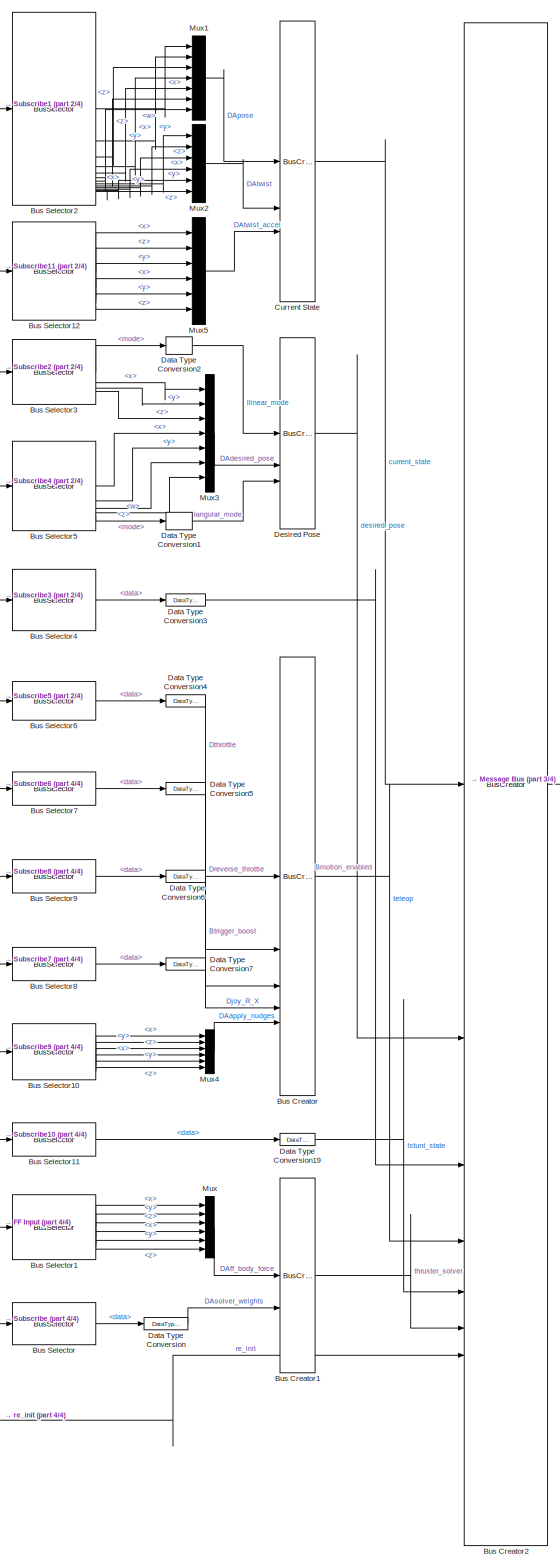
[diagram: Subsystem1 - part 1/4, center side, full height]
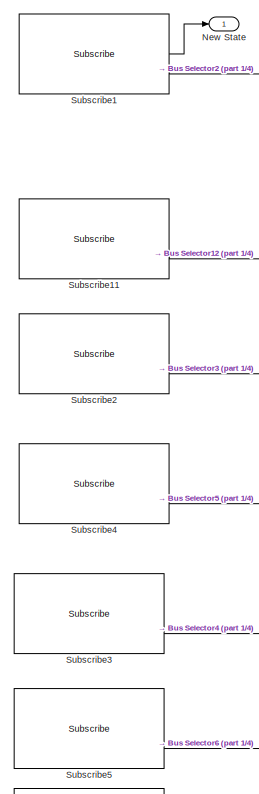
[diagram: Subsystem1 - part 2/4, top left region]
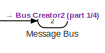
[diagram: Subsystem1 - part 3/4, middle right region]
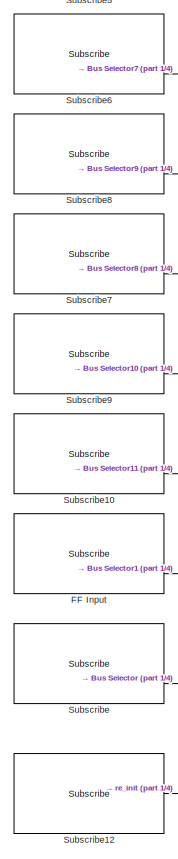
[diagram: Subsystem1 - part 4/4, bottom left region]
BLOCK [SubSystem] Subsystem1
BLOCK [BusCreator] Subsystem1/Bus Creator
  DisplayOption = bar
  InheritFromInputs = on
  Inputs = Dthrottle,Dreverse_throttle,Btrigger_boost,Djoy_R_X,DAapply_nudges
BLOCK [BusCreator] Subsystem1/Bus Creator1
  DisplayOption = bar
  InheritFromInputs = on
  Inputs = DAff_body_force,DAsolver_weights
BLOCK [BusCreator] Subsystem1/Bus Creator2
  DisplayOption = bar
  InheritFromInputs = on
  Inputs = 7
BLOCK [BusSelector] Subsystem1/Bus Selector
  OutputSignals = data
BLOCK [BusSelector] Subsystem1/Bus Selector1
  OutputSignals = linear.x,linear.y,linear.z,angular.x,angular.y,angular.z
BLOCK [BusSelector] Subsystem1/Bus Selector10
  OutputSignals = linear.x,linear.y,linear.z,angular.x,angular.y,angular.z
BLOCK [BusSelector] Subsystem1/Bus Selector11
  OutputSignals = data
BLOCK [BusSelector] Subsystem1/Bus Selector12
  OutputSignals = accel.accel.linear.x,accel.accel.linear.z,accel.accel.linear.y,accel.accel.angular.x,accel.accel.angular.y,accel.accel.angular.z
BLOCK [BusSelector] Subsystem1/Bus Selector2
  OutputSignals = pose.pose.position.x,pose.pose.position.y,pose.pose.position.z,pose.pose.orientation.x,pose.pose.orientation.y,pose.pose.orientation.z,pose.pose.orientation.w,twist.twist.linear.x,twist.twist.linear.y,twist.twist.linear.z,twist.twist.angular.x,twist.twist.angular.y,twist.twist.angular.z
BLOCK [BusSelector] Subsystem1/Bus Selector3
  OutputSignals = mode,setpoint_vect.x,setpoint_vect.y,setpoint_vect.z
BLOCK [BusSelector] Subsystem1/Bus Selector4
  OutputSignals = data
BLOCK [BusSelector] Subsystem1/Bus Selector5
  OutputSignals = setpoint_quat.x,setpoint_quat.y,setpoint_quat.z,setpoint_quat.w,mode
BLOCK [BusSelector] Subsystem1/Bus Selector6
  OutputSignals = data
BLOCK [BusSelector] Subsystem1/Bus Selector7
  OutputSignals = data
BLOCK [BusSelector] Subsystem1/Bus Selector8
  OutputSignals = data
BLOCK [BusSelector] Subsystem1/Bus Selector9
  OutputSignals = data
BLOCK [BusCreator] Subsystem1/Current State
  DisplayOption = bar
  InheritFromInputs = on
  Inputs = 3
BLOCK [DataTypeConversion] Subsystem1/Data Type Conversion
  RndMeth = Floor
  SaturateOnIntegerOverflow = off
BLOCK [DataTypeConversion] Subsystem1/Data Type Conversion1
  OutDataTypeStr = uint8
  RndMeth = Floor
  SaturateOnIntegerOverflow = off
BLOCK [DataTypeConversion] Subsystem1/Data Type Conversion19
  OutDataTypeStr = uint16
  RndMeth = Floor
  SaturateOnIntegerOverflow = off
BLOCK [DataTypeConversion] Subsystem1/Data Type Conversion2
  OutDataTypeStr = uint8
  RndMeth = Floor
  SaturateOnIntegerOverflow = off
BLOCK [DataTypeConversion] Subsystem1/Data Type Conversion3
  OutDataTypeStr = boolean
  RndMeth = Floor
  SaturateOnIntegerOverflow = off
BLOCK [DataTypeConversion] Subsystem1/Data Type Conversion4
  OutDataTypeStr = double
  RndMeth = Floor
  SaturateOnIntegerOverflow = off
BLOCK [DataTypeConversion] Subsystem1/Data Type Conversion5
  OutDataTypeStr = double
  RndMeth = Floor
  SaturateOnIntegerOverflow = off
BLOCK [DataTypeConversion] Subsystem1/Data Type Conversion6
  OutDataTypeStr = boolean
  RndMeth = Floor
  SaturateOnIntegerOverflow = off
BLOCK [DataTypeConversion] Subsystem1/Data Type Conversion7
  OutDataTypeStr = double
  RndMeth = Floor
  SaturateOnIntegerOverflow = off
BLOCK [BusCreator] Subsystem1/Desired Pose
  DisplayOption = bar
  InheritFromInputs = on
  Inputs = Ilinear_mode,DAdesired_pose,Iangular_mode
BLOCK [Reference] Subsystem1/FF Input  REF=ros2lib/Subscribe  (lib defined in slx_3c1549211f48)
  LibrarySourceBlock = roslib/ROS 2/Subscribe
  SourceBlock = ros2lib/Subscribe
  SourceType = ROS2 Subscribe
BLOCK [Outport] Subsystem1/Message Bus
  Port = 2
BLOCK [Mux] Subsystem1/Mux
  DisplayOption = bar
  Inputs = 6
BLOCK [Mux] Subsystem1/Mux1
  DisplayOption = bar
  Inputs = 7
BLOCK [Mux] Subsystem1/Mux2
  DisplayOption = bar
  Inputs = 6
BLOCK [Mux] Subsystem1/Mux3
  DisplayOption = bar
  Inputs = 7
BLOCK [Mux] Subsystem1/Mux4
  DisplayOption = bar
  Inputs = 6
BLOCK [Mux] Subsystem1/Mux5
  DisplayOption = bar
  Inputs = 6
BLOCK [Outport] Subsystem1/New State
BLOCK [Reference] Subsystem1/Subscribe  REF=ros2lib/Subscribe  (lib defined in slx_3c1549211f48)
  LibrarySourceBlock = roslib/ROS 2/Subscribe
  SourceBlock = ros2lib/Subscribe
  SourceType = ROS2 Subscribe
BLOCK [Reference] Subsystem1/Subscribe1  REF=ros2lib/Subscribe  (lib defined in slx_3c1549211f48)
  LibrarySourceBlock = roslib/ROS 2/Subscribe
  SourceBlock = ros2lib/Subscribe
  SourceType = ROS2 Subscribe
BLOCK [Reference] Subsystem1/Subscribe10  REF=ros2lib/Subscribe  (lib defined in slx_3c1549211f48)
  SourceBlock = ros2lib/Subscribe
  SourceType = ROS2 Subscribe
BLOCK [Reference] Subsystem1/Subscribe11  REF=ros2lib/Subscribe  (lib defined in slx_3c1549211f48)
  LibrarySourceBlock = roslib/ROS 2/Subscribe
  SourceBlock = ros2lib/Subscribe
  SourceType = ROS2 Subscribe
BLOCK [Reference] Subsystem1/Subscribe12  REF=ros2lib/Subscribe  (lib defined in slx_3c1549211f48)
  LibrarySourceBlock = roslib/ROS 2/Subscribe
  SourceBlock = ros2lib/Subscribe
  SourceType = ROS2 Subscribe
BLOCK [Reference] Subsystem1/Subscribe2  REF=ros2lib/Subscribe  (lib defined in slx_3c1549211f48)
  LibrarySourceBlock = roslib/ROS 2/Subscribe
  SourceBlock = ros2lib/Subscribe
  SourceType = ROS2 Subscribe
BLOCK [Reference] Subsystem1/Subscribe3  REF=ros2lib/Subscribe  (lib defined in slx_3c1549211f48)
  LibrarySourceBlock = roslib/ROS 2/Subscribe
  SourceBlock = ros2lib/Subscribe
  SourceType = ROS2 Subscribe
BLOCK [Reference] Subsystem1/Subscribe4  REF=ros2lib/Subscribe  (lib defined in slx_3c1549211f48)
  LibrarySourceBlock = roslib/ROS 2/Subscribe
  SourceBlock = ros2lib/Subscribe
  SourceType = ROS2 Subscribe
BLOCK [Reference] Subsystem1/Subscribe5  REF=ros2lib/Subscribe  (lib defined in slx_3c1549211f48)
  SourceBlock = ros2lib/Subscribe
  SourceType = ROS2 Subscribe
BLOCK [Reference] Subsystem1/Subscribe6  REF=ros2lib/Subscribe  (lib defined in slx_3c1549211f48)
  SourceBlock = ros2lib/Subscribe
  SourceType = ROS2 Subscribe
BLOCK [Reference] Subsystem1/Subscribe7  REF=ros2lib/Subscribe  (lib defined in slx_3c1549211f48)
  SourceBlock = ros2lib/Subscribe
  SourceType = ROS2 Subscribe
BLOCK [Reference] Subsystem1/Subscribe8  REF=ros2lib/Subscribe  (lib defined in slx_3c1549211f48)
  SourceBlock = ros2lib/Subscribe
  SourceType = ROS2 Subscribe
BLOCK [Reference] Subsystem1/Subscribe9  REF=ros2lib/Subscribe  (lib defined in slx_3c1549211f48)
  SourceBlock = ros2lib/Subscribe
  SourceType = ROS2 Subscribe
BLOCK [Sum] Sum
  Inputs = |++
BLOCK [Sum] Sum1
  Inputs = |++
BLOCK [SubSystem] TeleOp
BLOCK [BusSelector] TeleOp/Bus Selector
  OutputSignals = Dtele_throttle_deadzone,DAtele_nudge_forces,Dtele_steering_angle,Dtele_width,Dtele_accel_force,Dtele_drag_coefficient,Dtele_reverse_multiplier,Dtele_boost_multiplier,Dtele_boost_duration,Dtele_boost_cooldown
BLOCK [BusSelector] TeleOp/Bus Selector1
  OutputSignals = current_state.DAtwist,teleop.Dthrottle,teleop.Dreverse_throttle,teleop.Btrigger_boost,teleop.Djoy_R_X,teleop.DAapply_nudges
BLOCK [DataTypeConversion] TeleOp/Data Type Conversion
  RndMeth = Floor
  SaturateOnIntegerOverflow = off
BLOCK [SubSystem] TeleOp/Handle boost
  ErrorFcn = Stateflow.Translate.translate
  LibrarySourceBlock = simulink/User-Defined\nFunctions/MATLAB Function
  PermitHierarchicalResolution = ExplicitOnly
  SFBlockType = MATLAB Function
  TreatAsAtomicUnit = on
BLOCK [Demux] TeleOp/Handle boost/ Demux 
  Outputs = 1
BLOCK [S-Function] TeleOp/Handle boost/ SFunction 
  EnableBusSupport = on
  FunctionName = sf_sfun
  PortCounts = [6 3]
  SFcnIsStateOwnerBlock = off
  SFunctionDeploymentMode = off
  Tag = Stateflow S-Function 18
BLOCK [Terminator] TeleOp/Handle boost/ Terminator 
BLOCK [Outport] TeleOp/Handle boost/boost
BLOCK [Inport] TeleOp/Handle boost/boost_cool_down
  Port = 4
BLOCK [Inport] TeleOp/Handle boost/boost_duration
  Port = 5
BLOCK [Inport] TeleOp/Handle boost/boost_multiplier
  Port = 3
BLOCK [Inport] TeleOp/Handle boost/last_start_time
  Port = 6
BLOCK [Inport] TeleOp/Handle boost/ros_time
BLOCK [Outport] TeleOp/Handle boost/start_time
  Port = 2
BLOCK [Inport] TeleOp/Handle boost/trigger_boost
  Port = 2
BLOCK [SubSystem] TeleOp/MATLAB Function1
  ErrorFcn = Stateflow.Translate.translate
  LibrarySourceBlock = simulink/User-Defined\nFunctions/MATLAB Function
  PermitHierarchicalResolution = ExplicitOnly
  SFBlockType = MATLAB Function
  TreatAsAtomicUnit = on
BLOCK [Demux] TeleOp/MATLAB Function1/ Demux 
  Outputs = 1
BLOCK [S-Function] TeleOp/MATLAB Function1/ SFunction 
  EnableBusSupport = on
  FunctionName = sf_sfun
  PortCounts = [13 2]
  SFcnIsStateOwnerBlock = off
  SFunctionDeploymentMode = off
  Tag = Stateflow S-Function 16
BLOCK [Terminator] TeleOp/MATLAB Function1/ Terminator 
BLOCK [Inport] TeleOp/MATLAB Function1/accel_force
  Port = 10
BLOCK [Inport] TeleOp/MATLAB Function1/apply_nudge
  Port = 5
BLOCK [Inport] TeleOp/MATLAB Function1/boost
  Port = 13
BLOCK [Inport] TeleOp/MATLAB Function1/current_body_velocities
BLOCK [Inport] TeleOp/MATLAB Function1/drag_coefficent
  Port = 11
BLOCK [Inport] TeleOp/MATLAB Function1/joy_R_X
  Port = 4
BLOCK [Inport] TeleOp/MATLAB Function1/max_steering_angle
  Port = 8
BLOCK [Inport] TeleOp/MATLAB Function1/nudge_forces
  Port = 7
BLOCK [Inport] TeleOp/MATLAB Function1/reverse
  Port = 3
BLOCK [Inport] TeleOp/MATLAB Function1/reverse_max_force_multiplier
  Port = 12
BLOCK [Outport] TeleOp/MATLAB Function1/teleop_control
BLOCK [Inport] TeleOp/MATLAB Function1/throttle
  Port = 2
BLOCK [Inport] TeleOp/MATLAB Function1/throttle_deadzone
  Port = 6
BLOCK [Inport] TeleOp/MATLAB Function1/width
  Port = 9
BLOCK [Memory] TeleOp/Start Time
BLOCK [Inport] TeleOp/message_bus
  Port = 2
BLOCK [Inport] TeleOp/param bus
  Port = 3
BLOCK [Inport] TeleOp/ros_time
BLOCK [Outport] TeleOp/teleop_control
BLOCK [SubSystem] Thruster Solver
  PortSchema = {"entries":[{"content":{"sides":[{"content":{"connectorIds":["In1","In2","In3","In4","In5","In7","In8","In6"]},"type":"ConnectorPlacement.EquallySpacedRectSide","uuid":"7443c28d-8cee-4065-b63f-8039eaddf426"},{"content":{"connectorIds":["Out1","Out2","Out3","Out4"],"side":"RIGHT"},"type":"ConnectorPlacement.EquallySpacedRectSide","uuid":"625b2eba-64d9-4ade-9893-8e78eb613954"},{"content":{"side":"TO...<+285ch>
  ReferencedSubsystem = Thruster_Solver_Mathmatical
BLOCK [SubSystem] com learner
  ErrorFcn = Stateflow.Translate.translate
  LibrarySourceBlock = simulink/User-Defined\nFunctions/MATLAB Function
  PermitHierarchicalResolution = ExplicitOnly
  SFBlockType = MATLAB Function
  TreatAsAtomicUnit = on
BLOCK [Demux] com learner/ Demux 
  Outputs = 1
BLOCK [S-Function] com learner/ SFunction 
  EnableBusSupport = on
  FunctionName = sf_sfun
  PortCounts = [9 7]
  SFcnIsStateOwnerBlock = off
  SFunctionDeploymentMode = off
  Tag = Stateflow S-Function 44
BLOCK [Terminator] com learner/ Terminator 
BLOCK [Outport] com learner/application
  Port = 3
BLOCK [Inport] com learner/average_error
BLOCK [Inport] com learner/eval_time
  Port = 8
BLOCK [Outport] com learner/last_applied
  Port = 5
BLOCK [Outport] com learner/latest_adjustment_average_error
  Port = 4
BLOCK [Outport] com learner/new_state
BLOCK [Inport] com learner/previous_adjustment_average_error
  Port = 2
BLOCK [Inport] com learner/previous_application
  Port = 6
BLOCK [Inport] com learner/previous_last_applied
  Port = 9
BLOCK [Inport] com learner/previous_rewards
  Port = 4
BLOCK [Inport] com learner/previous_state
  Port = 3
BLOCK [Outport] com learner/reset_accumulator
  Port = 6
BLOCK [Inport] com learner/resolution
  Port = 5
BLOCK [Outport] com learner/rewards
  Port = 2
BLOCK [Inport] com learner/total_time
  Port = 7
NET Applied Force Scale:1 -> Auto_FF_Scale_Processor:4, Publish System:7
LINE Applied Force Scale:2 -> Subsystem Reference3:6
NET Applied Force Scale:3 -> Auto_FF_Scale_Processor:1, Publish System:5, Subsystem Reference3:7
LINE Applied Force Scale:4 -> Publish System:6
LINE Applied Force Scale:5 -> Auto_FF_Scale_Processor:2
NET Applied Force Scale:6 -> Record1:1, com learner:1
LINE Applied Force Scale:7 -> com learner:7
LINE Auto_FF_Scale_Processor:1 -> Memory:1
NET Auto_FF_Scale_Processor:2 -> Publish System:4, Sum:1
LINE Blank Message:1 -> Bus Assignment:1
LINE Bus Assignment:1 -> Publish:1
LINE Constant1:1 -> com learner:5
LINE Constant2:1 -> com learner:8
LINE Constant3:1 -> Thruster Solver:8
LINE Constant:1 -> Thruster Solver:3
LINE Control Mask Management/Clear Next Mask:1 -> Control Mask Management/clear_accumulators:1
LINE Control Mask Management/Data Type Conversion2:1 -> Control Mask Management/MATLAB Function:6
LINE Control Mask Management/MATLAB Function:1 -> Control Mask Management/Clear Next Mask:1
LINE Control Mask Management/MATLAB Function:2 -> Control Mask Management/active_control:1
LINE Control Mask Management/MATLAB Function:3 -> Control Mask Management/Previous Mask:1
LINE Control Mask Management/PID_Control:1 -> Control Mask Management/MATLAB Function:2
LINE Control Mask Management/Previous Mask:1 -> Control Mask Management/Data Type Conversion2:1
LINE Control Mask Management/SMC_Control:1 -> Control Mask Management/MATLAB Function:1
LINE Control Mask Management/Stunt_Control:1 -> Control Mask Management/MATLAB Function:4
LINE Control Mask Management/Teleop_Control:1 -> Control Mask Management/MATLAB Function:3
LINE Control Mask Management/mask:1 -> Control Mask Management/MATLAB Function:5
LINE Control Mask Management:1 -> Subsystem Reference:3
LINE Control Mask Management:2 -> Sum1:1
NET Control Mode Mask:1 -> Applied Force Scale:4, Demux:1, Drag Compensator:3, Thruster Solver:4
LINE Control Mode Mask:2 -> Sum:2
NET Current Time:1 -> Applied Force Scale:1, Auto_FF_Scale_Processor:5, Drag Compensator:2, Stunt Controller:1, Subsystem Reference1:1, Subsystem Reference3:1, Subsystem Reference:2, TeleOp:1, Thruster Solver:1
LINE Demux:1 -> Bus Assignment:2
LINE Demux:2 -> Bus Assignment:3
LINE Demux:3 -> Bus Assignment:4
LINE Demux:4 -> Bus Assignment:5
LINE Demux:5 -> Bus Assignment:6
LINE Demux:6 -> Bus Assignment:7
LINE Drag Compensator:1 -> Sum1:2
LINE Memory1:1 -> com learner:6
LINE Memory2:1 -> com learner:9
LINE Memory3:1 -> com learner:4
LINE Memory4:1 -> com learner:2
LINE Memory5:1 -> com learner:3
LINE Memory6:1 -> Applied Force Scale:6
LINE Memory:1 -> Applied Force Scale:5
LINE Stunt Controller/Bus Selector1:1 -> Stunt Controller/Data Type Conversion:1
LINE Stunt Controller/Bus Selector:1 -> Stunt Controller/control_mask_regulator:1
NET Stunt Controller/Bus Selector:2 -> Stunt Controller/control_mask_regulator:3, Stunt Controller/stunt_controller:1
LINE Stunt Controller/Bus Selector:3 -> Stunt Controller/stunt_controller:3
LINE Stunt Controller/Bus Selector:4 -> Stunt Controller/stunt_controller:4
LINE Stunt Controller/Bus Selector:5 -> Stunt Controller/stunt_controller:5
LINE Stunt Controller/Bus Selector:6 -> Stunt Controller/stunt_controller:6
NET Stunt Controller/Data Type Conversion:1 -> Stunt Controller/Max:1, Stunt Controller/stunt_controller:2
LINE Stunt Controller/Max:1 -> Stunt Controller/control_mask_regulator:2
LINE Stunt Controller/control_mask_regulator:1 -> Stunt Controller/control_mode_mask:1
LINE Stunt Controller/message_bus:1 -> Stunt Controller/Bus Selector1:1
LINE Stunt Controller/param_bus:1 -> Stunt Controller/Bus Selector:1
LINE Stunt Controller/ros_time:1 -> Stunt Controller/stunt_controller:7
LINE Stunt Controller/running_stunt_start_time:1 -> Stunt Controller/stunt_controller:8
NET Stunt Controller/running_stunt_state:1 -> Stunt Controller/Max:2, Stunt Controller/stunt_controller:9
LINE Stunt Controller/stunt_controller:1 -> Stunt Controller/stunt_active_control:1
LINE Stunt Controller/stunt_controller:2 -> Stunt Controller/running_stunt_start_time:1
NET Stunt Controller/stunt_controller:3 -> Stunt Controller/running_state:1, Stunt Controller/running_stunt_state:1
LINE Stunt Controller:1 -> Control Mask Management:4
LINE Stunt Controller:2 -> Control Mask Management:5
LINE Stunt Controller:3 -> Publish System:3
LINE Subsystem Reference1:1 -> Control Mask Management:2
LINE Subsystem Reference:1 -> Control Mask Management:1
LINE Subsystem/Active Input Mask:1 -> Subsystem/Iactive_input_mask:1
LINE Subsystem/Bsnt_safe_mode:1 -> Subsystem/Param Bus:22
LINE Subsystem/Bts_table_mode:1 -> Subsystem/Param Bus:32
LINE Subsystem/DAauto_tune_initial:1 -> Subsystem/Param Bus:37
LINE Subsystem/DAauto_tune_mask:1 -> Subsystem/Param Bus:36
LINE Subsystem/DAd_gains:1 -> Subsystem/Param Bus:3
LINE Subsystem/DAi_gains:1 -> Subsystem/Param Bus:4
LINE Subsystem/DAmax_control:1 -> Subsystem/Param Bus:1
LINE Subsystem/DAnominal_variance:1 -> Subsystem/Param Bus:42
LINE Subsystem/DAp_gains:1 -> Subsystem/Param Bus:2
LINE Subsystem/DAsmc_eta_0:1 -> Subsystem/Param Bus:7
LINE Subsystem/DAsmc_eta_1:1 -> Subsystem/Param Bus:8
LINE Subsystem/DAsmc_lamda:1 -> Subsystem/Param Bus:6
LINE Subsystem/DAsmc_max_accelerations:1 -> Subsystem/Param Bus:10
LINE Subsystem/DAsmc_velocity_curve:1 -> Subsystem/Param Bus:9
LINE Subsystem/DAtele_nudge_forces:1 -> Subsystem/Param Bus:12
LINE Subsystem/DAts_rpm_coefficients:1 -> Subsystem/Param Bus:30
LINE Subsystem/DAts_wrenchmat:1 -> Subsystem/Param Bus:27
LINE Subsystem/Data Type Conversion10:1 -> Subsystem/Dtele_width:1
LINE Subsystem/Data Type Conversion11:1 -> Subsystem/Dtele_accel_force:1
LINE Subsystem/Data Type Conversion12:1 -> Subsystem/Dtele_drag_coefficient:1
LINE Subsystem/Data Type Conversion13:1 -> Subsystem/Dtele_reverse_multiplier:1
LINE Subsystem/Data Type Conversion14:1 -> Subsystem/Dsnt_barrel_roll_duration:1
LINE Subsystem/Data Type Conversion16:1 -> Subsystem/Dsnt_summersault_force:1
LINE Subsystem/Data Type Conversion17:1 -> Subsystem/Dsnt_summersault_duration:1
LINE Subsystem/Data Type Conversion18:1 -> Subsystem/Dsnt_barrel_roll_force:1
LINE Subsystem/Data Type Conversion1:1 -> Subsystem/DAsmc_velocity_curve:1
LINE Subsystem/Data Type Conversion20:1 -> Subsystem/Dtele_boost_multiplier:1
LINE Subsystem/Data Type Conversion21:1 -> Subsystem/Dtele_boost_duration:1
LINE Subsystem/Data Type Conversion22:1 -> Subsystem/Dtele_boost_cooldown:1
LINE Subsystem/Data Type Conversion23:1 -> Subsystem/DAsmc_max_accelerations:1
LINE Subsystem/Data Type Conversion4:1 -> Subsystem/Dtele_throttle_deadzone:1
LINE Subsystem/Data Type Conversion5:1 -> Subsystem/DAsmc_lamda:1
LINE Subsystem/Data Type Conversion6:1 -> Subsystem/DAsmc_eta_0:1
LINE Subsystem/Data Type Conversion7:1 -> Subsystem/DAsmc_eta_1:1
LINE Subsystem/Data Type Conversion8:1 -> Subsystem/DAtele_nudge_forces:1
LINE Subsystem/Data Type Conversion9:1 -> Subsystem/Dtele_steering_angle:1
LINE Subsystem/Dnominal_time10:1 -> Subsystem/Param Bus:52
LINE Subsystem/Dnominal_time11:1 -> Subsystem/Param Bus:53
LINE Subsystem/Dnominal_time12:1 -> Subsystem/Param Bus:54
LINE Subsystem/Dnominal_time13:1 -> Subsystem/Param Bus:55
LINE Subsystem/Dnominal_time14:1 -> Subsystem/Param Bus:57
LINE Subsystem/Dnominal_time15:1 -> Subsystem/Param Bus:58
LINE Subsystem/Dnominal_time16:1 -> Subsystem/Param Bus:59
LINE Subsystem/Dnominal_time17:1 -> Subsystem/Param Bus:60
LINE Subsystem/Dnominal_time1:1 -> Subsystem/Param Bus:44
LINE Subsystem/Dnominal_time2:1 -> Subsystem/Param Bus:45
LINE Subsystem/Dnominal_time3:1 -> Subsystem/Param Bus:46
LINE Subsystem/Dnominal_time4:1 -> Subsystem/Param Bus:47
LINE Subsystem/Dnominal_time5:1 -> Subsystem/Param Bus:48
LINE Subsystem/Dnominal_time6:1 -> Subsystem/Param Bus:49
LINE Subsystem/Dnominal_time7:1 -> Subsystem/Param Bus:50
LINE Subsystem/Dnominal_time8:1 -> Subsystem/Param Bus:56
LINE Subsystem/Dnominal_time9:1 -> Subsystem/Param Bus:51
LINE Subsystem/Dnominal_time:1 -> Subsystem/Param Bus:43
LINE Subsystem/Dpositional_error_threshold:1 -> Subsystem/Param Bus:34
LINE Subsystem/Dreset_threshold:1 -> Subsystem/Param Bus:5
LINE Subsystem/Dreset_trust_threshold:1 -> Subsystem/Param Bus:40
LINE Subsystem/Dreset_weight_minimum:1 -> Subsystem/Param Bus:41
LINE Subsystem/Dsnt_barrel_roll_duration:1 -> Subsystem/Param Bus:26
LINE Subsystem/Dsnt_barrel_roll_force:1 -> Subsystem/Param Bus:25
LINE Subsystem/Dsnt_summersault_duration:1 -> Subsystem/Param Bus:24
LINE Subsystem/Dsnt_summersault_force:1 -> Subsystem/Param Bus:23
LINE Subsystem/Dtele_accel_force:1 -> Subsystem/Param Bus:15
LINE Subsystem/Dtele_boost_cooldown:1 -> Subsystem/Param Bus:20
LINE Subsystem/Dtele_boost_duration:1 -> Subsystem/Param Bus:19
LINE Subsystem/Dtele_boost_multiplier:1 -> Subsystem/Param Bus:18
LINE Subsystem/Dtele_drag_coefficient:1 -> Subsystem/Param Bus:16
LINE Subsystem/Dtele_reverse_multiplier:1 -> Subsystem/Param Bus:17
LINE Subsystem/Dtele_steering_angle:1 -> Subsystem/Param Bus:13
LINE Subsystem/Dtele_throttle_deadzone:1 -> Subsystem/Param Bus:11
LINE Subsystem/Dtele_width:1 -> Subsystem/Param Bus:14
LINE Subsystem/Dtrust_decay_tau:1 -> Subsystem/Param Bus:38
LINE Subsystem/Dtrust_growth_tau:1 -> Subsystem/Param Bus:39
LINE Subsystem/Dts_disable_weight:1 -> Subsystem/Param Bus:31
LINE Subsystem/Dts_feedback_decay:1 -> Subsystem/Param Bus:33
LINE Subsystem/Dts_individual_thrust_limit:1 -> Subsystem/Param Bus:29
LINE Subsystem/Dts_thrust_limit:1 -> Subsystem/Param Bus:28
LINE Subsystem/Dvelocity_threshold:1 -> Subsystem/Param Bus:35
LINE Subsystem/Eta 0:1 -> Subsystem/Data Type Conversion6:1
LINE Subsystem/Eta 1:1 -> Subsystem/Data Type Conversion7:1
LINE Subsystem/Force To Double10:1 -> Subsystem/Dts_feedback_decay:1
LINE Subsystem/Force To Double11:1 -> Subsystem/DAmax_control:1
LINE Subsystem/Force To Double12:1 -> Subsystem/Dpositional_error_threshold:1
LINE Subsystem/Force To Double13:1 -> Subsystem/Dvelocity_threshold:1
LINE Subsystem/Force To Double14:1 -> Subsystem/Dnominal_time5:1
LINE Subsystem/Force To Double15:1 -> Subsystem/Dnominal_time7:1
LINE Subsystem/Force To Double16:1 -> Subsystem/Dnominal_time6:1
LINE Subsystem/Force To Double17:1 -> Subsystem/Dnominal_time11:1
LINE Subsystem/Force To Double18:1 -> Subsystem/Dnominal_time13:1
LINE Subsystem/Force To Double19:1 -> Subsystem/DAauto_tune_mask:1
LINE Subsystem/Force To Double1:1 -> Subsystem/Dts_thrust_limit:1
LINE Subsystem/Force To Double20:1 -> Subsystem/DAauto_tune_initial:1
LINE Subsystem/Force To Double21:1 -> Subsystem/Dtrust_decay_tau:1
LINE Subsystem/Force To Double22:1 -> Subsystem/Dtrust_growth_tau:1
LINE Subsystem/Force To Double23:1 -> Subsystem/Dreset_trust_threshold:1
LINE Subsystem/Force To Double24:1 -> Subsystem/Dreset_weight_minimum:1
LINE Subsystem/Force To Double25:1 -> Subsystem/DAnominal_variance:1
LINE Subsystem/Force To Double26:1 -> Subsystem/Dnominal_time:1
LINE Subsystem/Force To Double27:1 -> Subsystem/Dnominal_time1:1
LINE Subsystem/Force To Double28:1 -> Subsystem/Dnominal_time2:1
LINE Subsystem/Force To Double29:1 -> Subsystem/Dnominal_time3:1
LINE Subsystem/Force To Double2:1 -> Subsystem/Dts_individual_thrust_limit:1
LINE Subsystem/Force To Double30:1 -> Subsystem/Dnominal_time4:1
LINE Subsystem/Force To Double31:1 -> Subsystem/Dnominal_time12:1
LINE Subsystem/Force To Double32:1 -> Subsystem/Dnominal_time9:1
LINE Subsystem/Force To Double33:1 -> Subsystem/Dnominal_time10:1
LINE Subsystem/Force To Double34:1 -> Subsystem/Dnominal_time8:1
LINE Subsystem/Force To Double35:1 -> Subsystem/Dnominal_time14:1
LINE Subsystem/Force To Double36:1 -> Subsystem/Dnominal_time15:1
LINE Subsystem/Force To Double37:1 -> Subsystem/Dnominal_time16:1
LINE Subsystem/Force To Double38:1 -> Subsystem/Dnominal_time17:1
NET Subsystem/Force To Double3:1 -> Subsystem/DAauto_tune_initial:2, Subsystem/DAauto_tune_mask:2, Subsystem/DAd_gains:2, Subsystem/DAi_gains:2, Subsystem/DAmax_control:2, Subsystem/DAnominal_variance:2, Subsystem/DAp_gains:2, Subsystem/DAsmc_eta_0:2, Subsystem/DAsmc_eta_1:2, Subsystem/DAsmc_lamda:2, Subsystem/DAsmc_max_accelerations:2, Subsystem/DAsmc_velocity_curve:2, Subsystem/DAtele_nudge_forces:2, Subsystem/DAts_rpm_coefficients:2, Subsystem/DAts_wrenchmat:2, Subsystem/Dnominal_time10:2, Subsystem/Dnominal_time11:2, Subsystem/Dnominal_time12:2, Subsystem/Dnominal_time13:2, Subsystem/Dnominal_time14:2, Subsystem/Dnominal_time15:2, Subsystem/Dnominal_time16:2, Subsystem/Dnominal_time17:2, Subsystem/Dnominal_time1:2, Subsystem/Dnominal_time2:2, Subsystem/Dnominal_time3:2, Subsystem/Dnominal_time4:2, Subsystem/Dnominal_time5:2, Subsystem/Dnominal_time6:2, Subsystem/Dnominal_time7:2, Subsystem/Dnominal_time8:2, Subsystem/Dnominal_time9:2, Subsystem/Dnominal_time:2, Subsystem/Dpositional_error_threshold:2, Subsystem/Dreset_threshold:2, Subsystem/Dreset_trust_threshold:2, Subsystem/Dreset_weight_minimum:2, Subsystem/Dsnt_barrel_roll_duration:2, Subsystem/Dsnt_barrel_roll_force:2, Subsystem/Dsnt_summersault_duration:2, Subsystem/Dsnt_summersault_force:2, Subsystem/Dtele_accel_force:2, Subsystem/Dtele_boost_cooldown:2, Subsystem/Dtele_boost_duration:2, Subsystem/Dtele_boost_multiplier:2, Subsystem/Dtele_drag_coefficient:2, Subsystem/Dtele_reverse_multiplier:2, Subsystem/Dtele_steering_angle:2, Subsystem/Dtele_throttle_deadzone:2, Subsystem/Dtele_width:2, Subsystem/Dtrust_decay_tau:2, Subsystem/Dtrust_growth_tau:2, Subsystem/Dts_disable_weight:2, Subsystem/Dts_feedback_decay:2, Subsystem/Dts_individual_thrust_limit:2, Subsystem/Dts_thrust_limit:2, Subsystem/Dvelocity_threshold:2, Subsystem/Iactive_input_mask:2
LINE Subsystem/Force To Double4:1 -> Subsystem/DAts_rpm_coefficients:1
LINE Subsystem/Force To Double5:1 -> Subsystem/Dts_disable_weight:1
LINE Subsystem/Force To Double6:1 -> Subsystem/DAp_gains:1
LINE Subsystem/Force To Double7:1 -> Subsystem/DAd_gains:1
LINE Subsystem/Force To Double8:1 -> Subsystem/DAi_gains:1
LINE Subsystem/Force To Double9:1 -> Subsystem/Dreset_threshold:1
LINE Subsystem/Force To Double:1 -> Subsystem/DAts_wrenchmat:1
LINE Subsystem/Force To RPM Curve Parameters:1 -> Subsystem/Force To Double4:1
LINE Subsystem/Get Parameter10:1 -> Subsystem/Data Type Conversion17:1
LINE Subsystem/Get Parameter11:1 -> Subsystem/Data Type Conversion16:1
LINE Subsystem/Get Parameter12:1 -> Subsystem/Data Type Conversion14:1
LINE Subsystem/Get Parameter13:1 -> Subsystem/Data Type Conversion22:1
LINE Subsystem/Get Parameter14:1 -> Subsystem/Data Type Conversion21:1
LINE Subsystem/Get Parameter15:1 -> Subsystem/Data Type Conversion20:1
LINE Subsystem/Get Parameter1:1 -> Subsystem/Data Type Conversion10:1
LINE Subsystem/Get Parameter2:1 -> Subsystem/Data Type Conversion9:1
LINE Subsystem/Get Parameter3:1 -> Subsystem/Data Type Conversion8:1
LINE Subsystem/Get Parameter4:1 -> Subsystem/Data Type Conversion4:1
LINE Subsystem/Get Parameter5:1 -> Subsystem/Data Type Conversion13:1
LINE Subsystem/Get Parameter6:1 -> Subsystem/Data Type Conversion12:1
LINE Subsystem/Get Parameter7:1 -> Subsystem/Data Type Conversion11:1
LINE Subsystem/Get Parameter8:1 -> Subsystem/Bsnt_safe_mode:1
LINE Subsystem/Get Parameter9:1 -> Subsystem/Data Type Conversion18:1
LINE Subsystem/Get Parameter:1 -> Subsystem/Force To Double9:1
LINE Subsystem/Get Thruster Wrench Matrix:1 -> Subsystem/Force To Double:1
LINE Subsystem/Iactive_input_mask:1 -> Subsystem/Param Bus:21
LINE Subsystem/Individual Limit1:1 -> Subsystem/Force To Double5:1
LINE Subsystem/Individual Limit2:1 -> Subsystem/Bts_table_mode:1
LINE Subsystem/Individual Limit3:1 -> Subsystem/Force To Double10:1
LINE Subsystem/Individual Limit:1 -> Subsystem/Force To Double2:1
LINE Subsystem/Param Bus:1 -> Subsystem/param_bus:1
LINE Subsystem/Scaling Factor:1 -> Subsystem/Force To Double3:1
LINE Subsystem/System Limit:1 -> Subsystem/Force To Double1:1
LINE Subsystem/convergence threshold10:1 -> Subsystem/Force To Double28:1
LINE Subsystem/convergence threshold11:1 -> Subsystem/Force To Double29:1
LINE Subsystem/convergence threshold12:1 -> Subsystem/Force To Double30:1
LINE Subsystem/convergence threshold13:1 -> Subsystem/Force To Double14:1
LINE Subsystem/convergence threshold14:1 -> Subsystem/Force To Double16:1
LINE Subsystem/convergence threshold15:1 -> Subsystem/Force To Double15:1
LINE Subsystem/convergence threshold16:1 -> Subsystem/Force To Double32:1
LINE Subsystem/convergence threshold17:1 -> Subsystem/Force To Double33:1
LINE Subsystem/convergence threshold18:1 -> Subsystem/Force To Double17:1
LINE Subsystem/convergence threshold19:1 -> Subsystem/Force To Double31:1
LINE Subsystem/convergence threshold1:1 -> Subsystem/Force To Double19:1
LINE Subsystem/convergence threshold20:1 -> Subsystem/Force To Double18:1
LINE Subsystem/convergence threshold21:1 -> Subsystem/Force To Double34:1
LINE Subsystem/convergence threshold22:1 -> Subsystem/Force To Double35:1
LINE Subsystem/convergence threshold23:1 -> Subsystem/Force To Double36:1
LINE Subsystem/convergence threshold24:1 -> Subsystem/Force To Double37:1
LINE Subsystem/convergence threshold25:1 -> Subsystem/Force To Double38:1
LINE Subsystem/convergence threshold2:1 -> Subsystem/Force To Double20:1
LINE Subsystem/convergence threshold3:1 -> Subsystem/Force To Double21:1
LINE Subsystem/convergence threshold4:1 -> Subsystem/Force To Double22:1
LINE Subsystem/convergence threshold5:1 -> Subsystem/Force To Double23:1
LINE Subsystem/convergence threshold6:1 -> Subsystem/Force To Double24:1
LINE Subsystem/convergence threshold7:1 -> Subsystem/Force To Double25:1
LINE Subsystem/convergence threshold8:1 -> Subsystem/Force To Double26:1
LINE Subsystem/convergence threshold9:1 -> Subsystem/Force To Double27:1
LINE Subsystem/d Gains:1 -> Subsystem/Force To Double7:1
LINE Subsystem/error threshold:1 -> Subsystem/Force To Double12:1
LINE Subsystem/i Gains:1 -> Subsystem/Force To Double8:1
LINE Subsystem/mass1:1 -> Subsystem/Data Type Conversion1:1
LINE Subsystem/mass2:1 -> Subsystem/Data Type Conversion23:1
LINE Subsystem/mass5:1 -> Subsystem/Data Type Conversion5:1
LINE Subsystem/max_control:1 -> Subsystem/Force To Double11:1
LINE Subsystem/p Gains:1 -> Subsystem/Force To Double6:1
LINE Subsystem/velocity threshold:1 -> Subsystem/Force To Double13:1
LINE Subsystem1/Bus Creator1:1 -> Subsystem1/Bus Creator2:6
LINE Subsystem1/Bus Creator2:1 -> Subsystem1/Message Bus:1
LINE Subsystem1/Bus Creator:1 -> Subsystem1/Bus Creator2:4
LINE Subsystem1/Bus Selector10:1 -> Subsystem1/Mux4:1
LINE Subsystem1/Bus Selector10:2 -> Subsystem1/Mux4:2
LINE Subsystem1/Bus Selector10:3 -> Subsystem1/Mux4:3
LINE Subsystem1/Bus Selector10:4 -> Subsystem1/Mux4:4
LINE Subsystem1/Bus Selector10:5 -> Subsystem1/Mux4:5
LINE Subsystem1/Bus Selector10:6 -> Subsystem1/Mux4:6
LINE Subsystem1/Bus Selector11:1 -> Subsystem1/Data Type Conversion19:1
LINE Subsystem1/Bus Selector12:1 -> Subsystem1/Mux5:1
LINE Subsystem1/Bus Selector12:2 -> Subsystem1/Mux5:2
LINE Subsystem1/Bus Selector12:3 -> Subsystem1/Mux5:3
LINE Subsystem1/Bus Selector12:4 -> Subsystem1/Mux5:4
LINE Subsystem1/Bus Selector12:5 -> Subsystem1/Mux5:5
LINE Subsystem1/Bus Selector12:6 -> Subsystem1/Mux5:6
LINE Subsystem1/Bus Selector1:1 -> Subsystem1/Mux:1
LINE Subsystem1/Bus Selector1:2 -> Subsystem1/Mux:2
LINE Subsystem1/Bus Selector1:3 -> Subsystem1/Mux:3
LINE Subsystem1/Bus Selector1:4 -> Subsystem1/Mux:4
LINE Subsystem1/Bus Selector1:5 -> Subsystem1/Mux:5
LINE Subsystem1/Bus Selector1:6 -> Subsystem1/Mux:6
LINE Subsystem1/Bus Selector2:1 -> Subsystem1/Mux1:1
LINE Subsystem1/Bus Selector2:10 -> Subsystem1/Mux2:3
LINE Subsystem1/Bus Selector2:11 -> Subsystem1/Mux2:4
LINE Subsystem1/Bus Selector2:12 -> Subsystem1/Mux2:5
LINE Subsystem1/Bus Selector2:13 -> Subsystem1/Mux2:6
LINE Subsystem1/Bus Selector2:2 -> Subsystem1/Mux1:2
LINE Subsystem1/Bus Selector2:3 -> Subsystem1/Mux1:3
LINE Subsystem1/Bus Selector2:4 -> Subsystem1/Mux1:4
LINE Subsystem1/Bus Selector2:5 -> Subsystem1/Mux1:5
LINE Subsystem1/Bus Selector2:6 -> Subsystem1/Mux1:6
LINE Subsystem1/Bus Selector2:7 -> Subsystem1/Mux1:7
LINE Subsystem1/Bus Selector2:8 -> Subsystem1/Mux2:1
LINE Subsystem1/Bus Selector2:9 -> Subsystem1/Mux2:2
LINE Subsystem1/Bus Selector3:1 -> Subsystem1/Data Type Conversion2:1
LINE Subsystem1/Bus Selector3:2 -> Subsystem1/Mux3:1
LINE Subsystem1/Bus Selector3:3 -> Subsystem1/Mux3:2
LINE Subsystem1/Bus Selector3:4 -> Subsystem1/Mux3:3
LINE Subsystem1/Bus Selector4:1 -> Subsystem1/Data Type Conversion3:1
LINE Subsystem1/Bus Selector5:1 -> Subsystem1/Mux3:4
LINE Subsystem1/Bus Selector5:2 -> Subsystem1/Mux3:5
LINE Subsystem1/Bus Selector5:3 -> Subsystem1/Mux3:6
LINE Subsystem1/Bus Selector5:4 -> Subsystem1/Mux3:7
LINE Subsystem1/Bus Selector5:5 -> Subsystem1/Data Type Conversion1:1
LINE Subsystem1/Bus Selector6:1 -> Subsystem1/Data Type Conversion4:1
LINE Subsystem1/Bus Selector7:1 -> Subsystem1/Data Type Conversion5:1
LINE Subsystem1/Bus Selector8:1 -> Subsystem1/Data Type Conversion7:1
LINE Subsystem1/Bus Selector9:1 -> Subsystem1/Data Type Conversion6:1
LINE Subsystem1/Bus Selector:1 -> Subsystem1/Data Type Conversion:1
LINE Subsystem1/Current State:1 -> Subsystem1/Bus Creator2:1
LINE Subsystem1/Data Type Conversion19:1 -> Subsystem1/Bus Creator2:5
LINE Subsystem1/Data Type Conversion1:1 -> Subsystem1/Desired Pose:3
LINE Subsystem1/Data Type Conversion2:1 -> Subsystem1/Desired Pose:1
LINE Subsystem1/Data Type Conversion3:1 -> Subsystem1/Bus Creator2:3
LINE Subsystem1/Data Type Conversion4:1 -> Subsystem1/Bus Creator:1
LINE Subsystem1/Data Type Conversion5:1 -> Subsystem1/Bus Creator:2
LINE Subsystem1/Data Type Conversion6:1 -> Subsystem1/Bus Creator:3
LINE Subsystem1/Data Type Conversion7:1 -> Subsystem1/Bus Creator:4
LINE Subsystem1/Data Type Conversion:1 -> Subsystem1/Bus Creator1:2
LINE Subsystem1/Desired Pose:1 -> Subsystem1/Bus Creator2:2
LINE Subsystem1/FF Input:2 -> Subsystem1/Bus Selector1:1
LINE Subsystem1/Mux1:1 -> Subsystem1/Current State:1
LINE Subsystem1/Mux2:1 -> Subsystem1/Current State:2
LINE Subsystem1/Mux3:1 -> Subsystem1/Desired Pose:2
LINE Subsystem1/Mux4:1 -> Subsystem1/Bus Creator:5
LINE Subsystem1/Mux5:1 -> Subsystem1/Current State:3
LINE Subsystem1/Mux:1 -> Subsystem1/Bus Creator1:1
LINE Subsystem1/Subscribe10:2 -> Subsystem1/Bus Selector11:1
LINE Subsystem1/Subscribe11:2 -> Subsystem1/Bus Selector12:1
LINE Subsystem1/Subscribe12:1 -> Subsystem1/Bus Creator2:7
LINE Subsystem1/Subscribe1:1 -> Subsystem1/New State:1
LINE Subsystem1/Subscribe1:2 -> Subsystem1/Bus Selector2:1
LINE Subsystem1/Subscribe2:2 -> Subsystem1/Bus Selector3:1
LINE Subsystem1/Subscribe3:2 -> Subsystem1/Bus Selector4:1
LINE Subsystem1/Subscribe4:2 -> Subsystem1/Bus Selector5:1
LINE Subsystem1/Subscribe5:2 -> Subsystem1/Bus Selector6:1
LINE Subsystem1/Subscribe6:2 -> Subsystem1/Bus Selector7:1
LINE Subsystem1/Subscribe7:2 -> Subsystem1/Bus Selector8:1
LINE Subsystem1/Subscribe8:2 -> Subsystem1/Bus Selector9:1
LINE Subsystem1/Subscribe9:2 -> Subsystem1/Bus Selector10:1
LINE Subsystem1/Subscribe:2 -> Subsystem1/Bus Selector:1
NET Subsystem1:1 -> Publish System:enable, Subsystem Reference1:2, Subsystem Reference3:enable, Subsystem Reference:1, Thruster Solver:2
NET Subsystem1:2 -> Applied Force Scale:2, Auto_FF_Scale_Processor:6, Control Mode Mask:2, Drag Compensator:1, Stunt Controller:2, Subsystem Reference1:4, Subsystem Reference3:5, Subsystem Reference:5, TeleOp:2, Thruster Solver:7
NET Subsystem:1 -> Applied Force Scale:3, Auto_FF_Scale_Processor:3, Drag Compensator:4, Stunt Controller:3, Subsystem Reference1:3, Subsystem Reference:4, TeleOp:3, Thruster Solver:6
LINE Sum1:1 -> Control Mode Mask:1
LINE Sum:1 -> Thruster Solver:5
LINE TeleOp/Bus Selector1:1 -> TeleOp/MATLAB Function1:1
LINE TeleOp/Bus Selector1:2 -> TeleOp/MATLAB Function1:2
LINE TeleOp/Bus Selector1:3 -> TeleOp/MATLAB Function1:3
LINE TeleOp/Bus Selector1:4 -> TeleOp/Data Type Conversion:1
LINE TeleOp/Bus Selector1:5 -> TeleOp/MATLAB Function1:4
LINE TeleOp/Bus Selector1:6 -> TeleOp/MATLAB Function1:5
LINE TeleOp/Bus Selector:1 -> TeleOp/MATLAB Function1:6
LINE TeleOp/Bus Selector:10 -> TeleOp/Handle boost:5
LINE TeleOp/Bus Selector:2 -> TeleOp/MATLAB Function1:7
LINE TeleOp/Bus Selector:3 -> TeleOp/MATLAB Function1:8
LINE TeleOp/Bus Selector:4 -> TeleOp/MATLAB Function1:9
LINE TeleOp/Bus Selector:5 -> TeleOp/MATLAB Function1:10
LINE TeleOp/Bus Selector:6 -> TeleOp/MATLAB Function1:11
LINE TeleOp/Bus Selector:7 -> TeleOp/MATLAB Function1:12
LINE TeleOp/Bus Selector:8 -> TeleOp/Handle boost:3
LINE TeleOp/Bus Selector:9 -> TeleOp/Handle boost:4
LINE TeleOp/Data Type Conversion:1 -> TeleOp/Handle boost:2
LINE TeleOp/Handle boost:1 -> TeleOp/MATLAB Function1:13
LINE TeleOp/Handle boost:2 -> TeleOp/Start Time:1
LINE TeleOp/MATLAB Function1:1 -> TeleOp/teleop_control:1
LINE TeleOp/Start Time:1 -> TeleOp/Handle boost:6
LINE TeleOp/message_bus:1 -> TeleOp/Bus Selector1:1
LINE TeleOp/param bus:1 -> TeleOp/Bus Selector:1
LINE TeleOp/ros_time:1 -> TeleOp/Handle boost:1
LINE TeleOp:1 -> Control Mask Management:3
LINE Thruster Solver:1 -> Publish System:1
NET Thruster Solver:2 -> Publish System:2, Subsystem Reference3:2
LINE Thruster Solver:3 -> Subsystem Reference3:3
LINE Thruster Solver:4 -> Subsystem Reference3:4
LINE com learner:1 -> Memory5:1
NET com learner:2 -> Memory3:1, Record:1
NET com learner:3 -> Memory1:1, Record2:1
LINE com learner:4 -> Memory4:1
LINE com learner:5 -> Memory2:1
LINE com learner:6 -> Memory6:1
note: NET lines group one-source signal fan-out (src -> all destinations, sorted); 1:1 wires keep LINE
CHART Control Mask Management/MATLAB Function states=1 transitions=1
  STATE_LABEL 'eML_blk_kernel()'
  STATE_LABEL 'SCRIPT:\nfunction [mask_changed, active_control, current_mask] = fcn(SMC_Control, PID_Control, Teleop_Control, Stunt_Control, mask, previous_mask)\n\n%mux together both the SMC and PID control outputs\n\nactive_control = zeros(6,1);\n\nfor i=1:6\n\n    if (mask(i) == 2)\n        active_control(i) = SMC_Control(i);\n    end\n\n    if (mask(i) == 1)\n        active_control(i) = PID_Control(i);\n    end    \n    \n  ...<+256ch>'
CHART TeleOp/MATLAB Function1 states=1 transitions=1
  STATE_LABEL 'eML_blk_kernel()'
  STATE_LABEL 'SCRIPT:\nfunction teleop_control = fcn(current_body_velocities, throttle, reverse, joy_R_X, apply_nudge, throttle_deadzone, nudge_forces, max_steering_angle, width, accel_force, drag_coefficent, reverse_max_force_multiplier, boost)\n\n% @throttle - the percentage of the defined max speed to move forward at -\n% scalar\n% @brake - the percentage of the breaks to apply\n% @throttle_deadzone - the minimum ...<+2589ch>'
CHART TeleOp/Handle boost states=1 transitions=1
  STATE_LABEL 'eML_blk_kernel()'
  STATE_LABEL 'SCRIPT:\nfunction [boost, start_time] = fcn(ros_time, trigger_boost,boost_multiplier, boost_cool_down, boost_duration, last_start_time)\n\n%all time in sec\n\n%boost of 1 = no boost\n\n%check if boost is running\nif(last_start_time + boost_duration > ros_time)\n    boost = boost_multiplier;\n    start_time = last_start_time;\n\n    return\nend\n\n%check if boost is in cooldown\nif(last_start_time + boost_duration...<+273ch>'
CHART Stunt Controller/control_mask_regulator states=1 transitions=1
  STATE_LABEL 'eML_blk_kernel()'
  STATE_LABEL 'SCRIPT:\nfunction control_mode_mask = fcn(control_mask, stunt_state, safe_mode)\n\n% @ control mask - mask to alter\n% @ stunt_state - int \n    % 0 - No Stunt\n    % 1 - Summersault\n    % 2 - Barrel Rool\n% @ safe mode - disable stunt mode (parameter to be changed)\n\ncontrol_mode_mask = control_mask;\n\n% the value to configure an axis to stunt mode\nstunt_mode_value = 4;\n\n% if summersault requested\nif(stun...<+686ch>'
CHART Stunt Controller/stunt_controller states=1 transitions=1
  STATE_LABEL 'eML_blk_kernel()'
  STATE_LABEL 'SCRIPT:\nfunction [stunt_active_control, start_time, running_state] = execute_stunt(safe_mode, trigger_stunt_state, summersault_force, summersault_run_time, barrel_roll_force, barrel_roll_run_time, ros_time, current_stunt_start_time, running_stunt_state)\n\n% @ trigger_stunt_state - int \n    % 0 - No Stunt\n    % 1 - Summersault\n    % 2 - Barrel Rool\n% @ running_stunt_state - currently running stunt -...<+1877ch>'
CHART com learner states=1 transitions=1
  STATE_LABEL 'eML_blk_kernel()'
  STATE_LABEL 'SCRIPT:\nfunction [new_state, rewards, application, latest_adjustment_average_error, last_applied, reset_accumulator] = com_leaner(average_error, previous_adjustment_average_error, previous_state, previous_rewards, resolution, previous_application, total_time, eval_time, previous_last_applied)\n\nerror_sum = sum(average_error(1:3));\n\nlatest_adjustment_average_error = previous_adjustment_average_error...<+3608ch>'
CHART  states=0 transitions=0
CHART  states=0 transitions=0
CHART  states=0 transitions=0
CHART  states=0 transitions=0
CHART  states=0 transitions=0
CHART  states=0 transitions=0
